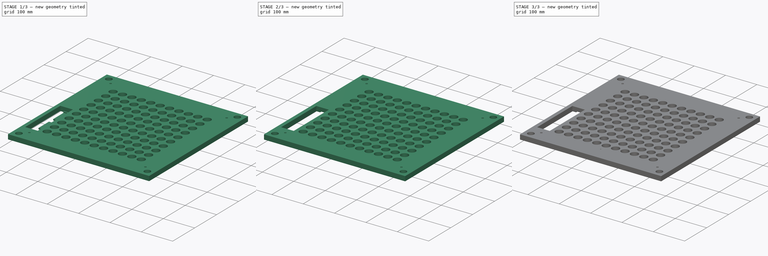
[diagram: build sequence overview — one tinted view per stage of 3, left to right]
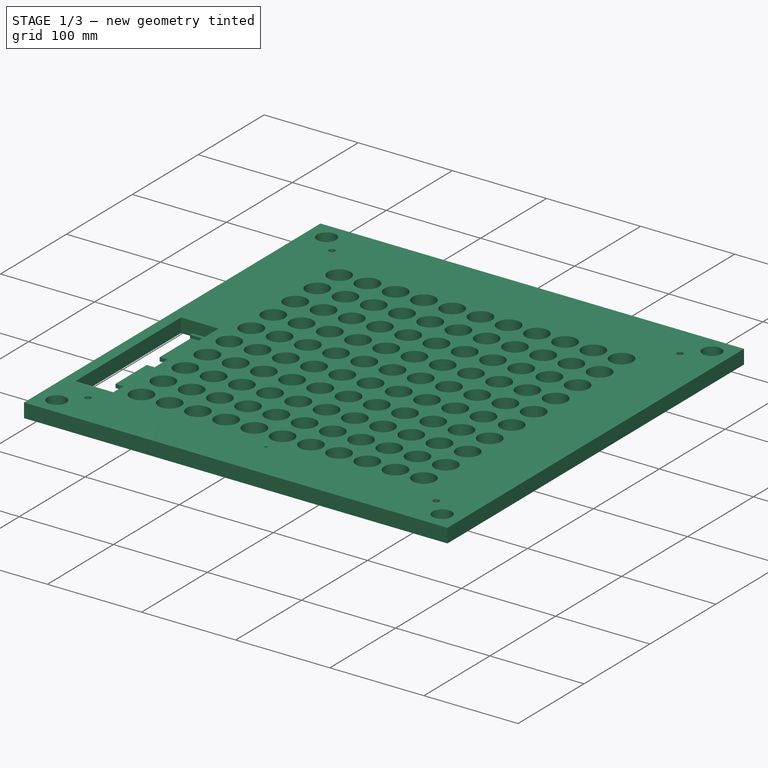
[diagram: stage 1 of 3 — iso view after this stage's code; geometry added in this stage tinted green]
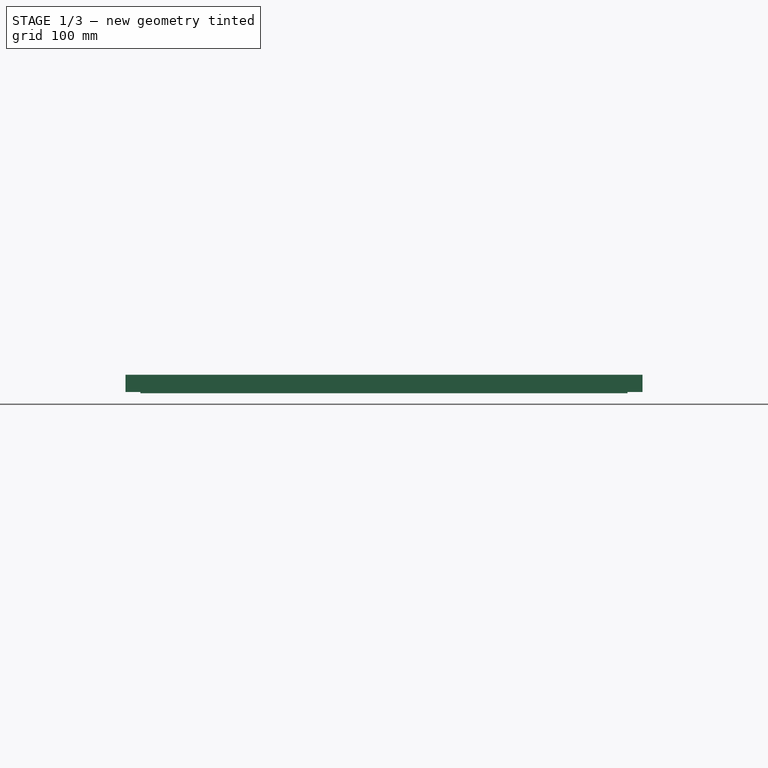
[diagram: stage 1 of 3 — front view after this stage's code; geometry added in this stage tinted green]
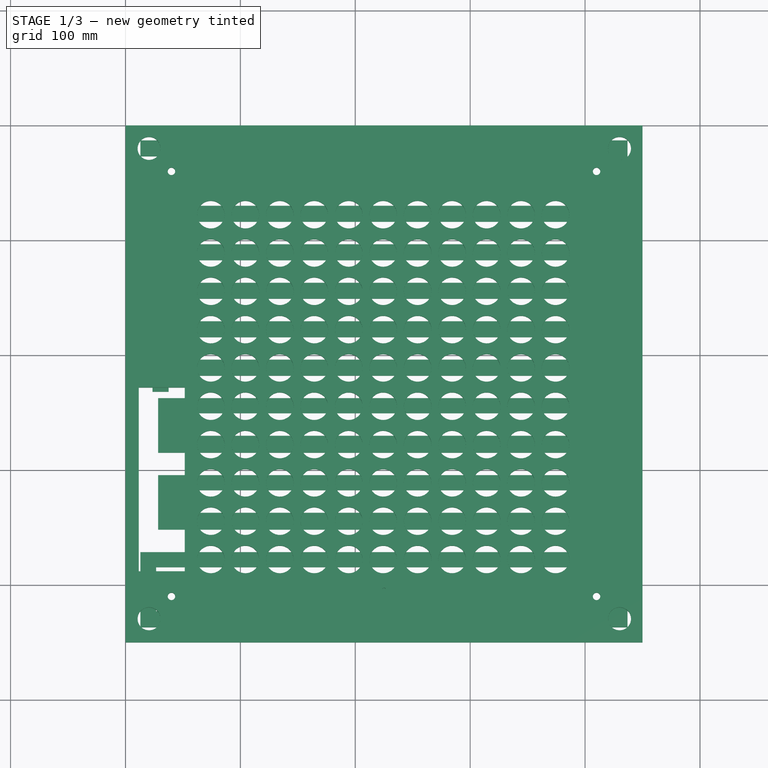
[diagram: stage 1 of 3 — top view after this stage's code; geometry added in this stage tinted green]
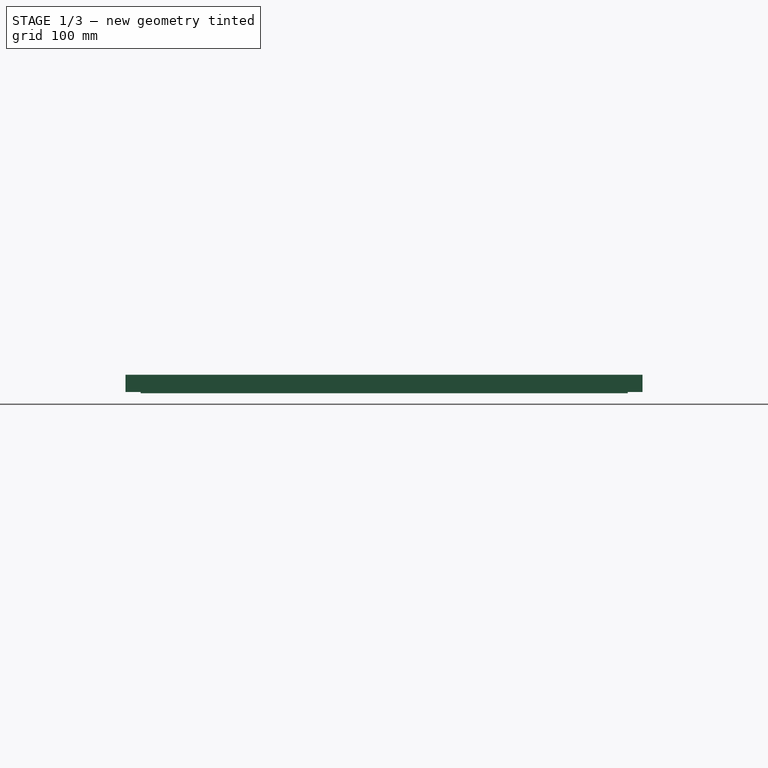
[diagram: stage 1 of 3 — right view after this stage's code; geometry added in this stage tinted green]
FCSTD DOCUMENT  (FreeCAD 0.18.4R)
Label: layout
License: All rights reserved
LicenseURL: http://en.wikipedia.org/wiki/All_rights_reserved
objects: Sketcher::SketchObject×8, Part::Extrusion×2, Part::Cut×2, App::DocumentObjectGroup×1, PartDesign::Pad×1, PartDesign::Body×1
note: 15 computed .brp shape members not serialized (recipe doc carries the construction recipe); baked Part::Feature solids carry a one-line shape summary decoded from their .brp

FEATURE [Sketcher::SketchObject] Sketch114  label="holes"
  sketch-geometry (114):
    g0: BSplineCurve PolesCount=7 KnotsCount=4 Degree=2 IsPeriodic=0
    g1: BSplineCurve PolesCount=7 KnotsCount=4 Degree=2 IsPeriodic=0
    g2: BSplineCurve PolesCount=7 KnotsCount=4 Degree=2 IsPeriodic=0
    g3: BSplineCurve PolesCount=7 KnotsCount=4 Degree=2 IsPeriodic=0
    g4: BSplineCurve PolesCount=7 KnotsCount=4 Degree=2 IsPeriodic=0
    g5: BSplineCurve PolesCount=7 KnotsCount=4 Degree=2 IsPeriodic=0
    g6: BSplineCurve PolesCount=7 KnotsCount=4 Degree=2 IsPeriodic=0
    g7: BSplineCurve PolesCount=7 KnotsCount=4 Degree=2 IsPeriodic=0
    g8: BSplineCurve PolesCount=7 KnotsCount=4 Degree=2 IsPeriodic=0
    g9: BSplineCurve PolesCount=7 KnotsCount=4 Degree=2 IsPeriodic=0
    g10: BSplineCurve PolesCount=7 KnotsCount=4 Degree=2 IsPeriodic=0
    g11: BSplineCurve PolesCount=7 KnotsCount=4 Degree=2 IsPeriodic=0
    g12: BSplineCurve PolesCount=7 KnotsCount=4 Degree=2 IsPeriodic=0
    g13: BSplineCurve PolesCount=7 KnotsCount=4 Degree=2 IsPeriodic=0
    g14: BSplineCurve PolesCount=7 KnotsCount=4 Degree=2 IsPeriodic=0
    g15: BSplineCurve PolesCount=7 KnotsCount=4 Degree=2 IsPeriodic=0
    g16: BSplineCurve PolesCount=7 KnotsCount=4 Degree=2 IsPeriodic=0
    g17: BSplineCurve PolesCount=7 KnotsCount=4 Degree=2 IsPeriodic=0
    g18: BSplineCurve PolesCount=7 KnotsCount=4 Degree=2 IsPeriodic=0
    g19: BSplineCurve PolesCount=7 KnotsCount=4 Degree=2 IsPeriodic=0
    g20: BSplineCurve PolesCount=7 KnotsCount=4 Degree=2 IsPeriodic=0
    g21: BSplineCurve PolesCount=7 KnotsCount=4 Degree=2 IsPeriodic=0
    g22: BSplineCurve PolesCount=7 KnotsCount=4 Degree=2 IsPeriodic=0
    g23: BSplineCurve PolesCount=7 KnotsCount=4 Degree=2 IsPeriodic=0
    g24: BSplineCurve PolesCount=7 KnotsCount=4 Degree=2 IsPeriodic=0
    g25: BSplineCurve PolesCount=7 KnotsCount=4 Degree=2 IsPeriodic=0
    g26: BSplineCurve PolesCount=7 KnotsCount=4 Degree=2 IsPeriodic=0
    g27: BSplineCurve PolesCount=7 KnotsCount=4 Degree=2 IsPeriodic=0
    g28: BSplineCurve PolesCount=7 KnotsCount=4 Degree=2 IsPeriodic=0
    g29: BSplineCurve PolesCount=7 KnotsCount=4 Degree=2 IsPeriodic=0
    g30: BSplineCurve PolesCount=7 KnotsCount=4 Degree=2 IsPeriodic=0
    g31: BSplineCurve PolesCount=7 KnotsCount=4 Degree=2 IsPeriodic=0
    g32: BSplineCurve PolesCount=7 KnotsCount=4 Degree=2 IsPeriodic=0
    g33: BSplineCurve PolesCount=7 KnotsCount=4 Degree=2 IsPeriodic=0
    g34: BSplineCurve PolesCount=7 KnotsCount=4 Degree=2 IsPeriodic=0
    g35: BSplineCurve PolesCount=7 KnotsCount=4 Degree=2 IsPeriodic=0
    g36: BSplineCurve PolesCount=7 KnotsCount=4 Degree=2 IsPeriodic=0
    g37: BSplineCurve PolesCount=7 KnotsCount=4 Degree=2 IsPeriodic=0
    g38: BSplineCurve PolesCount=7 KnotsCount=4 Degree=2 IsPeriodic=0
    g39: BSplineCurve PolesCount=7 KnotsCount=4 Degree=2 IsPeriodic=0
    g40: BSplineCurve PolesCount=7 KnotsCount=4 Degree=2 IsPeriodic=0
    g41: BSplineCurve PolesCount=7 KnotsCount=4 Degree=2 IsPeriodic=0
    g42: BSplineCurve PolesCount=7 KnotsCount=4 Degree=2 IsPeriodic=0
    g43: BSplineCurve PolesCount=7 KnotsCount=4 Degree=2 IsPeriodic=0
    g44: BSplineCurve PolesCount=7 KnotsCount=4 Degree=2 IsPeriodic=0
    g45: BSplineCurve PolesCount=7 KnotsCount=4 Degree=2 IsPeriodic=0
    g46: BSplineCurve PolesCount=7 KnotsCount=4 Degree=2 IsPeriodic=0
    g47: BSplineCurve PolesCount=7 KnotsCount=4 Degree=2 IsPeriodic=0
    g48: BSplineCurve PolesCount=7 KnotsCount=4 Degree=2 IsPeriodic=0
    g49: BSplineCurve PolesCount=7 KnotsCount=4 Degree=2 IsPeriodic=0
    g50: BSplineCurve PolesCount=7 KnotsCount=4 Degree=2 IsPeriodic=0
    g51: BSplineCurve PolesCount=7 KnotsCount=4 Degree=2 IsPeriodic=0
    g52: BSplineCurve PolesCount=7 KnotsCount=4 Degree=2 IsPeriodic=0
    g53: BSplineCurve PolesCount=7 KnotsCount=4 Degree=2 IsPeriodic=0
    g54: BSplineCurve PolesCount=7 KnotsCount=4 Degree=2 IsPeriodic=0
    g55: BSplineCurve PolesCount=7 KnotsCount=4 Degree=2 IsPeriodic=0
    g56: BSplineCurve PolesCount=7 KnotsCount=4 Degree=2 IsPeriodic=0
    g57: BSplineCurve PolesCount=7 KnotsCount=4 Degree=2 IsPeriodic=0
    g58: BSplineCurve PolesCount=7 KnotsCount=4 Degree=2 IsPeriodic=0
    g59: BSplineCurve PolesCount=7 KnotsCount=4 Degree=2 IsPeriodic=0
    g60: BSplineCurve PolesCount=7 KnotsCount=4 Degree=2 IsPeriodic=0
    g61: BSplineCurve PolesCount=7 KnotsCount=4 Degree=2 IsPeriodic=0
    g62: BSplineCurve PolesCount=7 KnotsCount=4 Degree=2 IsPeriodic=0
    g63: BSplineCurve PolesCount=7 KnotsCount=4 Degree=2 IsPeriodic=0
    g64: BSplineCurve PolesCount=7 KnotsCount=4 Degree=2 IsPeriodic=0
    g65: BSplineCurve PolesCount=7 KnotsCount=4 Degree=2 IsPeriodic=0
    g66: BSplineCurve PolesCount=7 KnotsCount=4 Degree=2 IsPeriodic=0
    g67: BSplineCurve PolesCount=7 KnotsCount=4 Degree=2 IsPeriodic=0
    g68: BSplineCurve PolesCount=7 KnotsCount=4 Degree=2 IsPeriodic=0
    g69: BSplineCurve PolesCount=7 KnotsCount=4 Degree=2 IsPeriodic=0
    g70: BSplineCurve PolesCount=7 KnotsCount=4 Degree=2 IsPeriodic=0
    g71: BSplineCurve PolesCount=7 KnotsCount=4 Degree=2 IsPeriodic=0
    g72: BSplineCurve PolesCount=7 KnotsCount=4 Degree=2 IsPeriodic=0
    g73: BSplineCurve PolesCount=7 KnotsCount=4 Degree=2 IsPeriodic=0
    g74: BSplineCurve PolesCount=7 KnotsCount=4 Degree=2 IsPeriodic=0
    g75: BSplineCurve PolesCount=7 KnotsCount=4 Degree=2 IsPeriodic=0
    g76: BSplineCurve PolesCount=7 KnotsCount=4 Degree=2 IsPeriodic=0
    g77: BSplineCurve PolesCount=7 KnotsCount=4 Degree=2 IsPeriodic=0
    g78: BSplineCurve PolesCount=7 KnotsCount=4 Degree=2 IsPeriodic=0
    g79: BSplineCurve PolesCount=7 KnotsCount=4 Degree=2 IsPeriodic=0
    g80: BSplineCurve PolesCount=7 KnotsCount=4 Degree=2 IsPeriodic=0
    g81: BSplineCurve PolesCount=7 KnotsCount=4 Degree=2 IsPeriodic=0
    g82: BSplineCurve PolesCount=7 KnotsCount=4 Degree=2 IsPeriodic=0
    g83: BSplineCurve PolesCount=7 KnotsCount=4 Degree=2 IsPeriodic=0
    g84: BSplineCurve PolesCount=7 KnotsCount=4 Degree=2 IsPeriodic=0
    g85: BSplineCurve PolesCount=7 KnotsCount=4 Degree=2 IsPeriodic=0
    g86: BSplineCurve PolesCount=7 KnotsCount=4 Degree=2 IsPeriodic=0
    g87: BSplineCurve PolesCount=7 KnotsCount=4 Degree=2 IsPeriodic=0
    g88: BSplineCurve PolesCount=7 KnotsCount=4 Degree=2 IsPeriodic=0
    g89: BSplineCurve PolesCount=7 KnotsCount=4 Degree=2 IsPeriodic=0
    g90: BSplineCurve PolesCount=7 KnotsCount=4 Degree=2 IsPeriodic=0
    g91: BSplineCurve PolesCount=7 KnotsCount=4 Degree=2 IsPeriodic=0
    g92: BSplineCurve PolesCount=7 KnotsCount=4 Degree=2 IsPeriodic=0
    g93: BSplineCurve PolesCount=7 KnotsCount=4 Degree=2 IsPeriodic=0
    g94: BSplineCurve PolesCount=7 KnotsCount=4 Degree=2 IsPeriodic=0
    g95: BSplineCurve PolesCount=7 KnotsCount=4 Degree=2 IsPeriodic=0
    g96: BSplineCurve PolesCount=7 KnotsCount=4 Degree=2 IsPeriodic=0
    g97: BSplineCurve PolesCount=7 KnotsCount=4 Degree=2 IsPeriodic=0
    g98: BSplineCurve PolesCount=7 KnotsCount=4 Degree=2 IsPeriodic=0
    g99: BSplineCurve PolesCount=7 KnotsCount=4 Degree=2 IsPeriodic=0
    g100: BSplineCurve PolesCount=7 KnotsCount=4 Degree=2 IsPeriodic=0
    g101: BSplineCurve PolesCount=7 KnotsCount=4 Degree=2 IsPeriodic=0
    g102: BSplineCurve PolesCount=7 KnotsCount=4 Degree=2 IsPeriodic=0
    g103: BSplineCurve PolesCount=7 KnotsCount=4 Degree=2 IsPeriodic=0
    g104: BSplineCurve PolesCount=7 KnotsCount=4 Degree=2 IsPeriodic=0
    g105: BSplineCurve PolesCount=7 KnotsCount=4 Degree=2 IsPeriodic=0
    g106: BSplineCurve PolesCount=7 KnotsCount=4 Degree=2 IsPeriodic=0
    g107: BSplineCurve PolesCount=7 KnotsCount=4 Degree=2 IsPeriodic=0
    g108: BSplineCurve PolesCount=7 KnotsCount=4 Degree=2 IsPeriodic=0
    g109: BSplineCurve PolesCount=7 KnotsCount=4 Degree=2 IsPeriodic=0
    g110: BSplineCurve PolesCount=7 KnotsCount=4 Degree=2 IsPeriodic=0
    g111: BSplineCurve PolesCount=7 KnotsCount=4 Degree=2 IsPeriodic=0
    g112: BSplineCurve PolesCount=7 KnotsCount=4 Degree=2 IsPeriodic=0
    g113: BSplineCurve PolesCount=7 KnotsCount=4 Degree=2 IsPeriodic=0
FEATURE [Sketcher::SketchObject] Sketch  label="plate"
  MapMode = 2
  Support = -> [Sketch114]
  sketch-geometry (4):
    g0: LineSegment StartX=0 StartY=0 StartZ=0 EndX=450 EndY=0 EndZ=0
    g1: LineSegment StartX=450 StartY=0 StartZ=0 EndX=450 EndY=-450 EndZ=0
    g2: LineSegment StartX=450 StartY=-450 StartZ=0 EndX=0 EndY=-450 EndZ=0
    g3: LineSegment StartX=0 StartY=-450 StartZ=0 EndX=0 EndY=0 EndZ=0
  constraints (11):
    c: Coincident(g0,g1)
    c: Coincident(g1,g2)
    c: Coincident(g2,g3)
    c: Coincident(g3,g0)
    c: Horizontal(g0)
    c: Horizontal(g2)
    c: Vertical(g1)
    c: Vertical(g3)
    c: DistanceX(g0,g0) = 450
    c: DistanceY(g1,g1) = 450
    c: Coincident(g0,g-1)
FEATURE [Sketcher::SketchObject] Sketch116  label="raspberrypi"
  sketch-geometry (4):
    g0: LineSegment StartX=11.5345 StartY=-228.121 StartZ=0 EndX=51.5345 EndY=-228.121 EndZ=0
    g1: LineSegment StartX=51.5345 StartY=-228.121 StartZ=0 EndX=51.5345 EndY=-388.121 EndZ=0
    g2: LineSegment StartX=51.5345 StartY=-388.121 StartZ=0 EndX=11.5345 EndY=-388.121 EndZ=0
    g3: LineSegment StartX=11.5345 StartY=-388.121 StartZ=0 EndX=11.5345 EndY=-228.121 EndZ=0
  constraints (10):
    c: Coincident(g0,g1)
    c: Coincident(g1,g2)
    c: Coincident(g2,g3)
    c: Coincident(g3,g0)
    c: Horizontal(g0)
    c: Horizontal(g2)
    c: Vertical(g1)
    c: Vertical(g3)
    c: DistanceY(g3,g3) = 160
    c: DistanceX(g0,g0) = 40
FEATURE [Sketcher::SketchObject] Sketch117  label="holes/plate/raspberrypi"
  sketch-geometry (127):
    g0: BSplineCurve PolesCount=7 KnotsCount=4 Degree=2 IsPeriodic=0
    g1: BSplineCurve PolesCount=7 KnotsCount=4 Degree=2 IsPeriodic=0
    g2: BSplineCurve PolesCount=7 KnotsCount=4 Degree=2 IsPeriodic=0
    g3: BSplineCurve PolesCount=7 KnotsCount=4 Degree=2 IsPeriodic=0
    g4: BSplineCurve PolesCount=7 KnotsCount=4 Degree=2 IsPeriodic=0
    g5: BSplineCurve PolesCount=7 KnotsCount=4 Degree=2 IsPeriodic=0
    g6: BSplineCurve PolesCount=7 KnotsCount=4 Degree=2 IsPeriodic=0
    g7: BSplineCurve PolesCount=7 KnotsCount=4 Degree=2 IsPeriodic=0
    g8: BSplineCurve PolesCount=7 KnotsCount=4 Degree=2 IsPeriodic=0
    g9: BSplineCurve PolesCount=7 KnotsCount=4 Degree=2 IsPeriodic=0
    g10: BSplineCurve PolesCount=7 KnotsCount=4 Degree=2 IsPeriodic=0
    g11: BSplineCurve PolesCount=7 KnotsCount=4 Degree=2 IsPeriodic=0
    g12: BSplineCurve PolesCount=7 KnotsCount=4 Degree=2 IsPeriodic=0
    g13: BSplineCurve PolesCount=7 KnotsCount=4 Degree=2 IsPeriodic=0
    g14: BSplineCurve PolesCount=7 KnotsCount=4 Degree=2 IsPeriodic=0
    g15: BSplineCurve PolesCount=7 KnotsCount=4 Degree=2 IsPeriodic=0
    g16: BSplineCurve PolesCount=7 KnotsCount=4 Degree=2 IsPeriodic=0
    g17: BSplineCurve PolesCount=7 KnotsCount=4 Degree=2 IsPeriodic=0
    g18: BSplineCurve PolesCount=7 KnotsCount=4 Degree=2 IsPeriodic=0
    g19: BSplineCurve PolesCount=7 KnotsCount=4 Degree=2 IsPeriodic=0
    g20: BSplineCurve PolesCount=7 KnotsCount=4 Degree=2 IsPeriodic=0
    g21: BSplineCurve PolesCount=7 KnotsCount=4 Degree=2 IsPeriodic=0
    g22: BSplineCurve PolesCount=7 KnotsCount=4 Degree=2 IsPeriodic=0
    g23: BSplineCurve PolesCount=7 KnotsCount=4 Degree=2 IsPeriodic=0
    g24: BSplineCurve PolesCount=7 KnotsCount=4 Degree=2 IsPeriodic=0
    g25: BSplineCurve PolesCount=7 KnotsCount=4 Degree=2 IsPeriodic=0
    g26: BSplineCurve PolesCount=7 KnotsCount=4 Degree=2 IsPeriodic=0
    g27: BSplineCurve PolesCount=7 KnotsCount=4 Degree=2 IsPeriodic=0
    g28: BSplineCurve PolesCount=7 KnotsCount=4 Degree=2 IsPeriodic=0
    g29: BSplineCurve PolesCount=7 KnotsCount=4 Degree=2 IsPeriodic=0
    g30: BSplineCurve PolesCount=7 KnotsCount=4 Degree=2 IsPeriodic=0
    g31: BSplineCurve PolesCount=7 KnotsCount=4 Degree=2 IsPeriodic=0
    g32: BSplineCurve PolesCount=7 KnotsCount=4 Degree=2 IsPeriodic=0
    g33: BSplineCurve PolesCount=7 KnotsCount=4 Degree=2 IsPeriodic=0
    g34: BSplineCurve PolesCount=7 KnotsCount=4 Degree=2 IsPeriodic=0
    g35: BSplineCurve PolesCount=7 KnotsCount=4 Degree=2 IsPeriodic=0
    g36: BSplineCurve PolesCount=7 KnotsCount=4 Degree=2 IsPeriodic=0
    g37: BSplineCurve PolesCount=7 KnotsCount=4 Degree=2 IsPeriodic=0
    g38: BSplineCurve PolesCount=7 KnotsCount=4 Degree=2 IsPeriodic=0
    g39: BSplineCurve PolesCount=7 KnotsCount=4 Degree=2 IsPeriodic=0
    g40: BSplineCurve PolesCount=7 KnotsCount=4 Degree=2 IsPeriodic=0
    g41: BSplineCurve PolesCount=7 KnotsCount=4 Degree=2 IsPeriodic=0
    g42: BSplineCurve PolesCount=7 KnotsCount=4 Degree=2 IsPeriodic=0
    g43: BSplineCurve PolesCount=7 KnotsCount=4 Degree=2 IsPeriodic=0
    g44: BSplineCurve PolesCount=7 KnotsCount=4 Degree=2 IsPeriodic=0
    g45: BSplineCurve PolesCount=7 KnotsCount=4 Degree=2 IsPeriodic=0
    g46: BSplineCurve PolesCount=7 KnotsCount=4 Degree=2 IsPeriodic=0
    g47: BSplineCurve PolesCount=7 KnotsCount=4 Degree=2 IsPeriodic=0
    g48: BSplineCurve PolesCount=7 KnotsCount=4 Degree=2 IsPeriodic=0
    g49: BSplineCurve PolesCount=7 KnotsCount=4 Degree=2 IsPeriodic=0
    g50: BSplineCurve PolesCount=7 KnotsCount=4 Degree=2 IsPeriodic=0
    g51: BSplineCurve PolesCount=7 KnotsCount=4 Degree=2 IsPeriodic=0
    g52: BSplineCurve PolesCount=7 KnotsCount=4 Degree=2 IsPeriodic=0
    g53: BSplineCurve PolesCount=7 KnotsCount=4 Degree=2 IsPeriodic=0
    g54: BSplineCurve PolesCount=7 KnotsCount=4 Degree=2 IsPeriodic=0
    g55: BSplineCurve PolesCount=7 KnotsCount=4 Degree=2 IsPeriodic=0
    g56: BSplineCurve PolesCount=7 KnotsCount=4 Degree=2 IsPeriodic=0
    g57: BSplineCurve PolesCount=7 KnotsCount=4 Degree=2 IsPeriodic=0
    g58: BSplineCurve PolesCount=7 KnotsCount=4 Degree=2 IsPeriodic=0
    g59: BSplineCurve PolesCount=7 KnotsCount=4 Degree=2 IsPeriodic=0
    g60: BSplineCurve PolesCount=7 KnotsCount=4 Degree=2 IsPeriodic=0
    g61: BSplineCurve PolesCount=7 KnotsCount=4 Degree=2 IsPeriodic=0
    g62: BSplineCurve PolesCount=7 KnotsCount=4 Degree=2 IsPeriodic=0
    g63: BSplineCurve PolesCount=7 KnotsCount=4 Degree=2 IsPeriodic=0
    g64: BSplineCurve PolesCount=7 KnotsCount=4 Degree=2 IsPeriodic=0
    g65: BSplineCurve PolesCount=7 KnotsCount=4 Degree=2 IsPeriodic=0
    g66: BSplineCurve PolesCount=7 KnotsCount=4 Degree=2 IsPeriodic=0
    g67: BSplineCurve PolesCount=7 KnotsCount=4 Degree=2 IsPeriodic=0
    g68: BSplineCurve PolesCount=7 KnotsCount=4 Degree=2 IsPeriodic=0
    g69: BSplineCurve PolesCount=7 KnotsCount=4 Degree=2 IsPeriodic=0
    g70: BSplineCurve PolesCount=7 KnotsCount=4 Degree=2 IsPeriodic=0
    g71: BSplineCurve PolesCount=7 KnotsCount=4 Degree=2 IsPeriodic=0
    g72: BSplineCurve PolesCount=7 KnotsCount=4 Degree=2 IsPeriodic=0
    g73: BSplineCurve PolesCount=7 KnotsCount=4 Degree=2 IsPeriodic=0
    g74: BSplineCurve PolesCount=7 KnotsCount=4 Degree=2 IsPeriodic=0
    g75: BSplineCurve PolesCount=7 KnotsCount=4 Degree=2 IsPeriodic=0
    g76: BSplineCurve PolesCount=7 KnotsCount=4 Degree=2 IsPeriodic=0
    g77: BSplineCurve PolesCount=7 KnotsCount=4 Degree=2 IsPeriodic=0
    g78: BSplineCurve PolesCount=7 KnotsCount=4 Degree=2 IsPeriodic=0
    g79: BSplineCurve PolesCount=7 KnotsCount=4 Degree=2 IsPeriodic=0
    g80: BSplineCurve PolesCount=7 KnotsCount=4 Degree=2 IsPeriodic=0
    g81: BSplineCurve PolesCount=7 KnotsCount=4 Degree=2 IsPeriodic=0
    g82: BSplineCurve PolesCount=7 KnotsCount=4 Degree=2 IsPeriodic=0
    g83: BSplineCurve PolesCount=7 KnotsCount=4 Degree=2 IsPeriodic=0
    g84: BSplineCurve PolesCount=7 KnotsCount=4 Degree=2 IsPeriodic=0
    g85: BSplineCurve PolesCount=7 KnotsCount=4 Degree=2 IsPeriodic=0
    g86: BSplineCurve PolesCount=7 KnotsCount=4 Degree=2 IsPeriodic=0
    g87: BSplineCurve PolesCount=7 KnotsCount=4 Degree=2 IsPeriodic=0
    g88: BSplineCurve PolesCount=7 KnotsCount=4 Degree=2 IsPeriodic=0
    g89: BSplineCurve PolesCount=7 KnotsCount=4 Degree=2 IsPeriodic=0
    g90: BSplineCurve PolesCount=7 KnotsCount=4 Degree=2 IsPeriodic=0
    g91: BSplineCurve PolesCount=7 KnotsCount=4 Degree=2 IsPeriodic=0
    g92: BSplineCurve PolesCount=7 KnotsCount=4 Degree=2 IsPeriodic=0
    g93: BSplineCurve PolesCount=7 KnotsCount=4 Degree=2 IsPeriodic=0
    g94: BSplineCurve PolesCount=7 KnotsCount=4 Degree=2 IsPeriodic=0
    g95: BSplineCurve PolesCount=7 KnotsCount=4 Degree=2 IsPeriodic=0
    g96: BSplineCurve PolesCount=7 KnotsCount=4 Degree=2 IsPeriodic=0
    g97: BSplineCurve PolesCount=7 KnotsCount=4 Degree=2 IsPeriodic=0
    g98: BSplineCurve PolesCount=7 KnotsCount=4 Degree=2 IsPeriodic=0
    g99: BSplineCurve PolesCount=7 KnotsCount=4 Degree=2 IsPeriodic=0
    g100: BSplineCurve PolesCount=7 KnotsCount=4 Degree=2 IsPeriodic=0
    g101: BSplineCurve PolesCount=7 KnotsCount=4 Degree=2 IsPeriodic=0
    g102: BSplineCurve PolesCount=7 KnotsCount=4 Degree=2 IsPeriodic=0
    g103: BSplineCurve PolesCount=7 KnotsCount=4 Degree=2 IsPeriodic=0
    g104: BSplineCurve PolesCount=7 KnotsCount=4 Degree=2 IsPeriodic=0
    g105: BSplineCurve PolesCount=7 KnotsCount=4 Degree=2 IsPeriodic=0
    g106: BSplineCurve PolesCount=7 KnotsCount=4 Degree=2 IsPeriodic=0
    g107: BSplineCurve PolesCount=7 KnotsCount=4 Degree=2 IsPeriodic=0
    g108: BSplineCurve PolesCount=7 KnotsCount=4 Degree=2 IsPeriodic=0
    g109: BSplineCurve PolesCount=7 KnotsCount=4 Degree=2 IsPeriodic=0
    g110: BSplineCurve PolesCount=7 KnotsCount=4 Degree=2 IsPeriodic=0
    g111: BSplineCurve PolesCount=7 KnotsCount=4 Degree=2 IsPeriodic=0
    g112: BSplineCurve PolesCount=7 KnotsCount=4 Degree=2 IsPeriodic=0
    g113: BSplineCurve PolesCount=7 KnotsCount=4 Degree=2 IsPeriodic=0
    g114: LineSegment StartX=0 StartY=0 StartZ=0 EndX=450 EndY=0 EndZ=0
    g115: LineSegment StartX=450 StartY=0 StartZ=0 EndX=450 EndY=-450 EndZ=0
    g116: LineSegment StartX=450 StartY=-450 StartZ=0 EndX=0 EndY=-450 EndZ=0
    g117: LineSegment StartX=0 StartY=-450 StartZ=0 EndX=0 EndY=0 EndZ=0
    g118: LineSegment StartX=11.5345 StartY=-228.121 StartZ=0 EndX=51.5345 EndY=-228.121 EndZ=0
    g119: LineSegment StartX=51.5345 StartY=-228.121 StartZ=0 EndX=51.5345 EndY=-388.121 EndZ=0
    g120: LineSegment StartX=51.5345 StartY=-388.121 StartZ=0 EndX=11.5345 EndY=-388.121 EndZ=0
    g121: LineSegment StartX=11.5345 StartY=-388.121 StartZ=0 EndX=11.5345 EndY=-228.121 EndZ=0
    g122: Circle CenterX=40 CenterY=-410 CenterZ=0 NormalX=0 NormalY=0 NormalZ=1 AngleXU=0 Radius=3.25
    g123: Circle CenterX=410 CenterY=-410 CenterZ=0 NormalX=0 NormalY=0 NormalZ=1 AngleXU=0 Radius=3.25
    g124: Circle CenterX=410 CenterY=-40 CenterZ=0 NormalX=0 NormalY=0 NormalZ=1 AngleXU=0 Radius=3.25
    g125: Circle CenterX=40 CenterY=-40 CenterZ=0 NormalX=0 NormalY=0 NormalZ=1 AngleXU=0 Radius=3.25
    g126: Circle CenterX=225 CenterY=-404 CenterZ=0 NormalX=0 NormalY=0 NormalZ=1 AngleXU=0 Radius=1.5
  constraints (36):
    c: Coincident(g114,g115)
    c: Coincident(g115,g116)
    c: Coincident(g116,g117)
    c: Coincident(g117,g114)
    c: Horizontal(g114)
    c: Horizontal(g116)
    c: Vertical(g115)
    c: Vertical(g117)
    c: DistanceX(g114,g114) = 450
    c: DistanceY(g115,g115) = 450
    c: Coincident(g114,g-1)
    c: Coincident(g118,g119)
    c: Coincident(g119,g120)
    c: Coincident(g120,g121)
    c: Coincident(g121,g118)
    c: Horizontal(g118)
    c: Horizontal(g120)
    c: Vertical(g119)
    c: Vertical(g121)
    c: DistanceY(g121,g121) = 160
    c: DistanceX(g118,g118) = 40
    c: DistanceX(g116,g122) = 40
    c: DistanceY(g116,g122) = 40
    c: Radius(g122) = 3.25
    c: DistanceX(g123,g115) = 40
    c: DistanceY(g115,g123) = 40
    c: Radius(g123) = 3.25
    c: Radius(g124) = 3.25
    c: DistanceX(g124,g114) = 40
    c: DistanceY(g124,g114) = 40
    c: DistanceX(g114,g125) = 40
    c: DistanceY(g125,g114) = 40
    c: Radius(g125) = 3.25
    c: DistanceX(g116,g126) = 225
    c: Radius(g126) = 1.5
    c: DistanceY(g116,g126) = 46
FEATURE [Sketcher::SketchObject] Sketch120  label="leds"
  MapMode = 5
  Placement = pos=(0,0,2) rot=(0,0,1;0rad)
  sketch-geometry (69):
    g0: LineSegment StartX=37.5531 StartY=-83.7652 StartZ=0 EndX=393.746 EndY=-83.7652 EndZ=0
    g1: LineSegment StartX=23.5531 StartY=-231.671 StartZ=0 EndX=23.5531 EndY=-69.7652 EndZ=0
    g2: LineSegment StartX=23.5531 StartY=-69.7652 StartZ=0 EndX=422.91 EndY=-69.7652 EndZ=0
    g3: LineSegment StartX=422.91 StartY=-117.265 StartZ=0 EndX=53.3267 EndY=-117.265 EndZ=0
    g4: LineSegment StartX=393.746 StartY=-83.7652 StartZ=0 EndX=393.746 EndY=-103.265 EndZ=0
    g5: LineSegment StartX=393.746 StartY=-103.265 StartZ=0 EndX=37.5531 EndY=-103.265 EndZ=0
    g6: LineSegment StartX=37.5531 StartY=-150.765 StartZ=0 EndX=393.746 EndY=-150.765 EndZ=0
    g7: LineSegment StartX=393.746 StartY=-150.765 StartZ=0 EndX=393.746 EndY=-170.265 EndZ=0
    g8: LineSegment StartX=393.746 StartY=-170.265 StartZ=0 EndX=37.5531 EndY=-170.265 EndZ=0
    g9: LineSegment StartX=53.3267 StartY=-117.265 StartZ=0 EndX=53.3267 EndY=-136.765 EndZ=0
    g10: LineSegment StartX=53.3267 StartY=-136.765 StartZ=0 EndX=422.91 EndY=-136.765 EndZ=0
    g11: LineSegment StartX=422.91 StartY=-184.265 StartZ=0 EndX=53.3267 EndY=-184.265 EndZ=0
    g12: LineSegment StartX=53.3267 StartY=-184.265 StartZ=0 EndX=53.3267 EndY=-203.765 EndZ=0
    g13: LineSegment StartX=53.3267 StartY=-203.765 StartZ=0 EndX=422.91 EndY=-203.765 EndZ=0
    g14: LineSegment StartX=422.91 StartY=-250.467 StartZ=0 EndX=53.3267 EndY=-250.467 EndZ=0
    g15: LineSegment StartX=37.5531 StartY=-217.765 StartZ=0 EndX=393.746 EndY=-217.765 EndZ=0
    g16: LineSegment StartX=393.746 StartY=-217.765 StartZ=0 EndX=393.746 EndY=-237.265 EndZ=0
    g17: LineSegment StartX=393.746 StartY=-237.265 StartZ=0 EndX=28.4564 EndY=-237.265 EndZ=0
    g18: LineSegment StartX=53.3267 StartY=-269.967 StartZ=0 EndX=422.91 EndY=-269.967 EndZ=0
    g19: LineSegment StartX=422.91 StartY=-317.467 StartZ=0 EndX=53.3267 EndY=-317.467 EndZ=0
    g20: LineSegment StartX=28.4564 StartY=-284.765 StartZ=0 EndX=393.746 EndY=-284.765 EndZ=0
    g21: LineSegment StartX=393.746 StartY=-284.765 StartZ=0 EndX=393.746 EndY=-304.265 EndZ=0
    g22: LineSegment StartX=393.746 StartY=-304.265 StartZ=0 EndX=28.4564 EndY=-304.265 EndZ=0
    g23: LineSegment StartX=53.3267 StartY=-336.967 StartZ=0 EndX=422.91 EndY=-336.967 EndZ=0
    g24: LineSegment StartX=28.4564 StartY=-351.765 StartZ=0 EndX=393.746 EndY=-351.765 EndZ=0
    g25: LineSegment StartX=393.746 StartY=-351.765 StartZ=0 EndX=393.746 EndY=-371.265 EndZ=0
    g26: LineSegment StartX=436.91 StartY=-436.815 StartZ=0 EndX=12.9101 EndY=-436.815 EndZ=0
    g27: LineSegment StartX=436.91 StartY=-12.8148 StartZ=0 EndX=436.91 EndY=-436.815 EndZ=0
    g28: LineSegment StartX=436.91 StartY=-12.8148 StartZ=0 EndX=12.9101 EndY=-12.8148 EndZ=0
    g29: LineSegment StartX=12.9101 StartY=-26.8148 StartZ=0 EndX=422.91 EndY=-26.8148 EndZ=0
    g30: LineSegment StartX=12.9101 StartY=-371.265 StartZ=0 EndX=393.746 EndY=-371.265 EndZ=0
    g31: LineSegment StartX=422.709 StartY=-384.467 StartZ=0 EndX=26.7094 EndY=-384.467 EndZ=0
    g32: LineSegment StartX=26.7094 StartY=-384.467 StartZ=0 EndX=26.7094 EndY=-422.617 EndZ=0
    g33: LineSegment StartX=12.9101 StartY=-371.265 StartZ=0 EndX=12.9101 EndY=-436.815 EndZ=0
    g34: LineSegment StartX=12.9101 StartY=-12.8148 StartZ=0 EndX=12.9101 EndY=-26.8148 EndZ=0
    g35: LineSegment StartX=23.5531 StartY=-231.671 StartZ=0 EndX=37.5531 EndY=-231.671 EndZ=0
    g36: LineSegment StartX=28.4564 StartY=-304.265 StartZ=0 EndX=28.4564 EndY=-351.765 EndZ=0
    g37: LineSegment StartX=28.4564 StartY=-284.765 StartZ=0 EndX=28.4564 EndY=-237.265 EndZ=0
    g38: LineSegment StartX=53.3267 StartY=-317.467 StartZ=0 EndX=53.3267 EndY=-336.967 EndZ=0
    g39: LineSegment StartX=53.3267 StartY=-250.467 StartZ=0 EndX=53.3267 EndY=-269.967 EndZ=0
    g40: LineSegment StartX=422.709 StartY=-384.467 StartZ=0 EndX=422.709 EndY=-423.018 EndZ=0
    g41: LineSegment StartX=422.91 StartY=-317.467 StartZ=0 EndX=422.91 EndY=-336.967 EndZ=0
    g42: LineSegment StartX=422.91 StartY=-250.467 StartZ=0 EndX=422.91 EndY=-269.967 EndZ=0
    g43: LineSegment StartX=422.91 StartY=-184.265 StartZ=0 EndX=422.91 EndY=-203.765 EndZ=0
    g44: LineSegment StartX=422.91 StartY=-117.265 StartZ=0 EndX=422.91 EndY=-136.765 EndZ=0
    g45: LineSegment StartX=422.91 StartY=-26.8148 StartZ=0 EndX=422.91 EndY=-69.7652 EndZ=0
    g46: LineSegment StartX=37.5531 StartY=-83.7652 StartZ=0 EndX=37.5531 EndY=-103.265 EndZ=0
    g47: LineSegment StartX=37.5531 StartY=-150.765 StartZ=0 EndX=37.5531 EndY=-170.265 EndZ=0
    g48: LineSegment StartX=37.5531 StartY=-217.765 StartZ=0 EndX=37.5531 EndY=-231.671 EndZ=0
    g49: LineSegment [constr] StartX=422.91 StartY=-203.765 StartZ=0 EndX=422.91 EndY=-250.467 EndZ=0
    g50: LineSegment [constr] StartX=393.746 StartY=-170.265 StartZ=0 EndX=393.746 EndY=-217.765 EndZ=0
    g51: LineSegment [constr] StartX=393.746 StartY=-237.265 StartZ=0 EndX=393.746 EndY=-284.765 EndZ=0
    g52: LineSegment [constr] StartX=393.746 StartY=-103.265 StartZ=0 EndX=393.746 EndY=-150.765 EndZ=0
    g53: LineSegment [constr] StartX=53.3267 StartY=-136.765 StartZ=0 EndX=53.3267 EndY=-184.265 EndZ=0
    g54: LineSegment [constr] StartX=53.3267 StartY=-203.765 StartZ=0 EndX=53.3267 EndY=-250.467 EndZ=0
    g55: LineSegment [constr] StartX=53.3267 StartY=-269.967 StartZ=0 EndX=53.3267 EndY=-317.467 EndZ=0
    g56: LineSegment [constr] StartX=28.4564 StartY=-284.765 StartZ=0 EndX=28.4564 EndY=-304.265 EndZ=0
    g57: LineSegment [constr] StartX=37.5531 StartY=-170.265 StartZ=0 EndX=37.5531 EndY=-217.765 EndZ=0
    g58: LineSegment [constr] StartX=37.5531 StartY=-103.265 StartZ=0 EndX=37.5531 EndY=-150.765 EndZ=0
    g59: LineSegment [constr] StartX=422.91 StartY=-269.967 StartZ=0 EndX=422.91 EndY=-317.467 EndZ=0
    g60: LineSegment [constr] StartX=422.91 StartY=-136.765 StartZ=0 EndX=422.91 EndY=-184.265 EndZ=0
    g61: LineSegment [constr] StartX=422.91 StartY=-69.7652 StartZ=0 EndX=422.91 EndY=-117.265 EndZ=0
    g62: LineSegment [constr] StartX=393.746 StartY=-304.265 StartZ=0 EndX=393.746 EndY=-351.765 EndZ=0
    g63: LineSegment StartX=217 StartY=-393.857 StartZ=0 EndX=233 EndY=-393.857 EndZ=0
    g64: LineSegment StartX=233 StartY=-393.857 StartZ=0 EndX=233 EndY=-423.018 EndZ=0
    g65: LineSegment StartX=233 StartY=-423.018 StartZ=0 EndX=217 EndY=-423.018 EndZ=0
    g66: LineSegment StartX=217 StartY=-423.018 StartZ=0 EndX=217 EndY=-393.857 EndZ=0
    g67: LineSegment StartX=233 StartY=-423.018 StartZ=0 EndX=422.709 EndY=-423.018 EndZ=0
    g68: LineSegment StartX=26.7094 StartY=-422.617 StartZ=0 EndX=217 EndY=-423.018 EndZ=0
  constraints (181):
    c: Coincident(g1,g2)
    c: Coincident(g4,g5)
    c: Coincident(g7,g8)
    c: Coincident(g9,g10)
    c: Coincident(g11,g12)
    c: Coincident(g12,g13)
    c: Coincident(g15,g16)
    c: Coincident(g16,g17)
    c: Coincident(g20,g21)
    c: Coincident(g21,g22)
    c: Coincident(g24,g25)
    c: Vertical(g1)
    c: Vertical(g9)
    c: Vertical(g12)
    c: Vertical(g4)
    c: Vertical(g7)
    c: Vertical(g16)
    c: Vertical(g21)
    c: Vertical(g25)
    c: Horizontal(g26)
    c: Vertical(g27)
    c: Horizontal(g29)
    c: Horizontal(g28)
    c: Horizontal(g14)
    c: Horizontal(g17)
    c: Horizontal(g15)
    c: Horizontal(g13)
    c: Horizontal(g11)
    c: Horizontal(g8)
    c: Horizontal(g6)
    c: Horizontal(g10)
    c: Horizontal(g3)
    c: Horizontal(g5)
    c: Horizontal(g0)
    c: Horizontal(g2)
    c: Horizontal(g18)
    c: Horizontal(g20)
    c: Horizontal(g24)
    c: Horizontal(g23)
    c: Horizontal(g22)
    c: Horizontal(g19)
    c: Coincident(g33,g26)
    c: Vertical(g33)
    c: Vertical(g32)
    c: Coincident(g26,g27)
    c: Coincident(g28,g27)
    c: Coincident(g29,g34)
    c: Coincident(g28,g34)
    c: Vertical(g34)
    c: Coincident(g32,g31)
    c: Coincident(g30,g33)
    c: Coincident(g7,g6)
    c: Coincident(g0,g4)
    c: Coincident(g3,g9)
    c: Coincident(g35,g1)
    c: Horizontal(g35)
    c: Coincident(g17,g37)
    c: Coincident(g20,g37)
    c: Coincident(g22,g36)
    c: Coincident(g24,g36)
    c: Coincident(g39,g14)
    c: Coincident(g18,g39)
    c: Coincident(g23,g38)
    c: Vertical(g39)
    c: Vertical(g37)
    c: Vertical(g36)
    c: Vertical(g38)
    c: Horizontal(g31)
    c: Coincident(g30,g25)
    c: Horizontal(g30)
    c: DistanceY(g31,g23) = 47.5
    c: DistanceY(g19,g18) = 47.5
    c: DistanceY(g36,g36) = 47.5
    c: DistanceY(g37,g37) = 47.5
    c: Coincident(g19,g38)
    c: DistanceY(g25,g25) = 19.5
    c: DistanceY(g38,g38) = 19.5
    c: DistanceY(g21,g21) = 19.5
    c: DistanceY(g39,g39) = 19.5
    c: DistanceY(g16,g16) = 19.5
    c: DistanceY(g15,g8) = 47.5
    c: DistanceY(g6,g5) = 47.5
    c: DistanceY(g3,g2) = 47.5
    c: DistanceY(g11,g10) = 47.5
    c: DistanceY(g7,g7) = 19.5
    c: DistanceY(g4,g4) = 19.5
    c: DistanceY(g9,g9) = 19.5
    c: DistanceY(g12,g12) = 19.5
    c: DistanceX(g26,g26) = 424
    c: DistanceX(g32,g40) = 396
    c: DistanceY(g27,g27) = 424
    c: DistanceX(g28,g28) = 424
    c: DistanceX(g29,g29) = 410
    c: DistanceX(g35,g35) = 14
    c: Distance(g0,g1) = 19.799
    c: Coincident(g40,g31)
    c: Vertical(g40)
    c: Coincident(g19,g41)
    c: Coincident(g41,g23)
    c: Vertical(g41)
    c: Coincident(g42,g18)
    c: Coincident(g42,g14)
    c: Vertical(g42)
    c: Coincident(g43,g13)
    c: Coincident(g43,g11)
    c: Vertical(g43)
    c: Coincident(g44,g10)
    c: Coincident(g44,g3)
    c: Vertical(g44)
    c: Distance(g29,g27) = 19.799
    c: Coincident(g45,g2)
    c: Coincident(g45,g29)
    c: Vertical(g45)
    c: Coincident(g0,g46)
    c: Coincident(g46,g5)
    c: Vertical(g46)
    c: Coincident(g47,g6)
    c: Coincident(g47,g8)
    c: Vertical(g47)
    c: Coincident(g48,g35)
    c: Coincident(g48,g15)
    c: Vertical(g48)
    c: Distance(g32,g26) = 19.799
    c: Distance(g26,g40) = 19.799
    c: Coincident(g49,g14)
    c: Coincident(g49,g13)
    c: Vertical(g49)
    c: Coincident(g50,g15)
    c: Coincident(g50,g7)
    c: Vertical(g50)
    c: Coincident(g51,g20)
    c: Coincident(g51,g16)
    c: Vertical(g51)
    c: Coincident(g52,g6)
    c: Coincident(g52,g4)
    c: Vertical(g52)
    c: Coincident(g53,g11)
    c: Coincident(g53,g9)
    c: Coincident(g54,g14)
    c: Coincident(g54,g12)
    c: Vertical(g54)
    c: Vertical(g53)
    c: Coincident(g55,g19)
    c: Coincident(g18,g55)
    c: Vertical(g55)
    c: Coincident(g56,g22)
    c: Coincident(g56,g20)
    c: Vertical(g56)
    c: Coincident(g57,g15)
    c: Vertical(g57)
    c: Coincident(g57,g8)
    c: Coincident(g58,g6)
    c: Coincident(g58,g5)
    c: Vertical(g58)
    c: Coincident(g59,g19)
    c: Coincident(g18,g59)
    c: Vertical(g59)
    c: Coincident(g60,g11)
    c: Coincident(g60,g10)
    c: Coincident(g61,g3)
    c: Vertical(g60)
    c: Coincident(g2,g61)
    c: Vertical(g61)
    c: Coincident(g62,g24)
    c: Coincident(g62,g21)
    c: Vertical(g62)
    c: Coincident(g63,g64)
    c: Coincident(g64,g65)
    c: Coincident(g65,g66)
    c: Coincident(g66,g63)
    c: Horizontal(g63)
    c: Horizontal(g65)
    c: Vertical(g64)
    c: Vertical(g66)
    c: DistanceX(g63,g63) = 16
    c: Coincident(g67,g64)
    c: Coincident(g67,g40)
    c: Horizontal(g67)
    c: Coincident(g68,g65)
    c: Coincident(g68,g32)
    c: DistanceX(g-1,g63) = 217
FEATURE [Sketcher::SketchObject] Sketch121  label="wires"
  sketch-geometry (36):
    g0: LineSegment StartX=42.5205 StartY=-147.039 StartZ=0 EndX=22.5205 EndY=-147.039 EndZ=0
    g1: LineSegment StartX=22.5205 StartY=-147.039 StartZ=0 EndX=22.5205 EndY=-107.039 EndZ=0
    g2: LineSegment StartX=22.5205 StartY=-107.039 StartZ=0 EndX=42.5205 EndY=-107.039 EndZ=0
    g3: LineSegment StartX=42.5205 StartY=-107.039 StartZ=0 EndX=42.5205 EndY=-147.039 EndZ=0
    g4: LineSegment StartX=23.7036 StartY=-174.007 StartZ=0 EndX=43.7036 EndY=-174.007 EndZ=0
    g5: LineSegment StartX=43.7036 StartY=-174.007 StartZ=0 EndX=43.7036 EndY=-214.007 EndZ=0
    g6: LineSegment StartX=43.7036 StartY=-214.007 StartZ=0 EndX=23.7036 EndY=-214.007 EndZ=0
    g7: LineSegment StartX=23.7036 StartY=-214.007 StartZ=0 EndX=23.7036 EndY=-174.007 EndZ=0
    g8: LineSegment StartX=402.584 StartY=-73.4929 StartZ=0 EndX=422.584 EndY=-73.4929 EndZ=0
    g9: LineSegment StartX=422.584 StartY=-73.4929 StartZ=0 EndX=422.584 EndY=-113.493 EndZ=0
    g10: LineSegment StartX=422.584 StartY=-113.493 StartZ=0 EndX=402.584 EndY=-113.493 EndZ=0
    g11: LineSegment StartX=402.584 StartY=-113.493 StartZ=0 EndX=402.584 EndY=-73.4929 EndZ=0
    g12: LineSegment StartX=402.395 StartY=-140.08 StartZ=0 EndX=422.395 EndY=-140.08 EndZ=0
    g13: LineSegment StartX=422.395 StartY=-140.08 StartZ=0 EndX=422.395 EndY=-180.08 EndZ=0
    g14: LineSegment StartX=422.395 StartY=-180.08 StartZ=0 EndX=402.395 EndY=-180.08 EndZ=0
    g15: LineSegment StartX=402.395 StartY=-180.08 StartZ=0 EndX=402.395 EndY=-140.08 EndZ=0
    g16: LineSegment StartX=402.416 StartY=-207.33 StartZ=0 EndX=422.416 EndY=-207.33 EndZ=0
    g17: LineSegment StartX=422.416 StartY=-207.33 StartZ=0 EndX=422.416 EndY=-247.33 EndZ=0
    g18: LineSegment StartX=422.416 StartY=-247.33 StartZ=0 EndX=402.416 EndY=-247.33 EndZ=0
    g19: LineSegment StartX=402.416 StartY=-247.33 StartZ=0 EndX=402.416 EndY=-207.33 EndZ=0
    g20: LineSegment StartX=402.531 StartY=-273.805 StartZ=0 EndX=422.531 EndY=-273.805 EndZ=0
    g21: LineSegment StartX=422.531 StartY=-273.805 StartZ=0 EndX=422.531 EndY=-313.805 EndZ=0
    g22: LineSegment StartX=422.531 StartY=-313.805 StartZ=0 EndX=402.531 EndY=-313.805 EndZ=0
    g23: LineSegment StartX=402.531 StartY=-313.805 StartZ=0 EndX=402.531 EndY=-273.805 EndZ=0
    g24: LineSegment StartX=402.62 StartY=-340.786 StartZ=0 EndX=422.62 EndY=-340.786 EndZ=0
    g25: LineSegment StartX=422.62 StartY=-340.786 StartZ=0 EndX=422.62 EndY=-380.786 EndZ=0
    g26: LineSegment StartX=422.62 StartY=-380.786 StartZ=0 EndX=402.62 EndY=-380.786 EndZ=0
    g27: LineSegment StartX=402.62 StartY=-380.786 StartZ=0 EndX=402.62 EndY=-340.786 EndZ=0
    g28: LineSegment StartX=22.9681 StartY=-240.055 StartZ=0 EndX=42.9681 EndY=-240.055 EndZ=0
    g29: LineSegment StartX=42.9681 StartY=-240.055 StartZ=0 EndX=42.9681 EndY=-280.055 EndZ=0
    g30: LineSegment StartX=42.9681 StartY=-280.055 StartZ=0 EndX=22.9681 EndY=-280.055 EndZ=0
    g31: LineSegment StartX=22.9681 StartY=-280.055 StartZ=0 EndX=22.9681 EndY=-240.055 EndZ=0
    g32: LineSegment StartX=23.024 StartY=-307.792 StartZ=0 EndX=43.024 EndY=-307.792 EndZ=0
    g33: LineSegment StartX=43.024 StartY=-307.792 StartZ=0 EndX=43.024 EndY=-347.792 EndZ=0
    g34: LineSegment StartX=43.024 StartY=-347.792 StartZ=0 EndX=23.024 EndY=-347.792 EndZ=0
    g35: LineSegment StartX=23.024 StartY=-347.792 StartZ=0 EndX=23.024 EndY=-307.792 EndZ=0
  constraints (90):
    c: Coincident(g0,g1)
    c: Coincident(g1,g2)
    c: Coincident(g2,g3)
    c: Coincident(g3,g0)
    c: Horizontal(g0)
    c: Horizontal(g2)
    c: Vertical(g1)
    c: Vertical(g3)
    c: Coincident(g4,g5)
    c: Coincident(g5,g6)
    c: Coincident(g6,g7)
    c: Coincident(g7,g4)
    c: Horizontal(g4)
    c: Horizontal(g6)
    c: Vertical(g5)
    c: Vertical(g7)
    c: Coincident(g8,g9)
    c: Coincident(g9,g10)
    c: Coincident(g10,g11)
    c: Coincident(g11,g8)
    c: Horizontal(g8)
    c: Horizontal(g10)
    c: Vertical(g9)
    c: Vertical(g11)
    c: Coincident(g12,g13)
    c: Coincident(g13,g14)
    c: Coincident(g14,g15)
    c: Coincident(g15,g12)
    c: Horizontal(g12)
    c: Horizontal(g14)
    c: Vertical(g13)
    c: Vertical(g15)
    c: Coincident(g16,g17)
    c: Coincident(g17,g18)
    c: Coincident(g18,g19)
    c: Coincident(g19,g16)
    c: Horizontal(g16)
    c: Horizontal(g18)
    c: Vertical(g17)
    c: Vertical(g19)
    c: Coincident(g20,g21)
    c: Coincident(g21,g22)
    c: Coincident(g22,g23)
    c: Coincident(g23,g20)
    c: Horizontal(g20)
    c: Horizontal(g22)
    c: Vertical(g21)
    c: Vertical(g23)
    c: Coincident(g24,g25)
    c: Coincident(g25,g26)
    c: Coincident(g26,g27)
    c: Coincident(g27,g24)
    c: Horizontal(g24)
    c: Horizontal(g26)
    c: Vertical(g25)
    c: Vertical(g27)
    c: Coincident(g28,g29)
    c: Coincident(g29,g30)
    c: Coincident(g30,g31)
    c: Coincident(g31,g28)
    c: Horizontal(g28)
    c: Horizontal(g30)
    c: Vertical(g29)
    c: Vertical(g31)
    c: Coincident(g32,g33)
    c: Coincident(g33,g34)
    c: Coincident(g34,g35)
    c: Coincident(g35,g32)
    c: Horizontal(g32)
    c: Horizontal(g34)
    c: Vertical(g33)
    c: Vertical(g35)
    c: DistanceX(g2,g2) = 20
    c: DistanceY(g3,g3) = 40
    c: DistanceX(g4,g4) = 20
    c: DistanceY(g5,g5) = 40
    c: DistanceX(g8,g8) = 20
    c: DistanceY(g11,g11) = 40
    c: DistanceX(g12,g12) = 20
    c: DistanceY(g15,g15) = 40
    c: DistanceX(g16,g16) = 20
    c: DistanceY(g19,g19) = 40
    c: DistanceX(g20,g20) = 20
    c: DistanceY(g23,g23) = 40
    c: DistanceX(g24,g24) = 20
    c: DistanceY(g27,g27) = 40
    c: DistanceX(g28,g28) = 20
    c: DistanceX(g32,g32) = 20
    c: DistanceY(g35,g35) = 40
    c: DistanceY(g31,g31) = 40
FEATURE [App::DocumentObjectGroup] Group  label="sketches"
  Group = -> [Sketch116,Sketch114,Sketch,Sketch121,Sketch120]
FEATURE [Part::Extrusion] Extrude001  label="Extrude-plate"
  Base = -> Sketch117
  Dir = (0,0,1)
  DirMode = 2
  FaceMakerClass = Part::FaceMakerBullseye
  LengthFwd = 15
  LengthRev = 0
  Solid = true
  Symmetric = false
FEATURE [Sketcher::SketchObject] Sketch124  label="leds001"
  MapMode = 5
  Placement = pos=(0,0,-1) rot=(0,0,1;0rad)
  sketch-geometry (69):
    g0: LineSegment StartX=37.5531 StartY=-83.7652 StartZ=0 EndX=393.746 EndY=-83.7652 EndZ=0
    g1: LineSegment StartX=23.5531 StartY=-231.671 StartZ=0 EndX=23.5531 EndY=-69.7652 EndZ=0
    g2: LineSegment StartX=23.5531 StartY=-69.7652 StartZ=0 EndX=422.91 EndY=-69.7652 EndZ=0
    g3: LineSegment StartX=422.91 StartY=-117.265 StartZ=0 EndX=53.3267 EndY=-117.265 EndZ=0
    g4: LineSegment StartX=393.746 StartY=-83.7652 StartZ=0 EndX=393.746 EndY=-103.265 EndZ=0
    g5: LineSegment StartX=393.746 StartY=-103.265 StartZ=0 EndX=37.5531 EndY=-103.265 EndZ=0
    g6: LineSegment StartX=37.5531 StartY=-150.765 StartZ=0 EndX=393.746 EndY=-150.765 EndZ=0
    g7: LineSegment StartX=393.746 StartY=-150.765 StartZ=0 EndX=393.746 EndY=-170.265 EndZ=0
    g8: LineSegment StartX=393.746 StartY=-170.265 StartZ=0 EndX=37.5531 EndY=-170.265 EndZ=0
    g9: LineSegment StartX=53.3267 StartY=-117.265 StartZ=0 EndX=53.3267 EndY=-136.765 EndZ=0
    g10: LineSegment StartX=53.3267 StartY=-136.765 StartZ=0 EndX=422.91 EndY=-136.765 EndZ=0
    g11: LineSegment StartX=422.91 StartY=-184.265 StartZ=0 EndX=53.3267 EndY=-184.265 EndZ=0
    g12: LineSegment StartX=53.3267 StartY=-184.265 StartZ=0 EndX=53.3267 EndY=-203.765 EndZ=0
    g13: LineSegment StartX=53.3267 StartY=-203.765 StartZ=0 EndX=422.91 EndY=-203.765 EndZ=0
    g14: LineSegment StartX=422.91 StartY=-250.467 StartZ=0 EndX=53.3267 EndY=-250.467 EndZ=0
    g15: LineSegment StartX=37.5531 StartY=-217.765 StartZ=0 EndX=393.746 EndY=-217.765 EndZ=0
    g16: LineSegment StartX=393.746 StartY=-217.765 StartZ=0 EndX=393.746 EndY=-237.265 EndZ=0
    g17: LineSegment StartX=393.746 StartY=-237.265 StartZ=0 EndX=28.4564 EndY=-237.265 EndZ=0
    g18: LineSegment StartX=53.3267 StartY=-269.967 StartZ=0 EndX=422.91 EndY=-269.967 EndZ=0
    g19: LineSegment StartX=422.91 StartY=-317.467 StartZ=0 EndX=53.3267 EndY=-317.467 EndZ=0
    g20: LineSegment StartX=28.4564 StartY=-284.765 StartZ=0 EndX=393.746 EndY=-284.765 EndZ=0
    g21: LineSegment StartX=393.746 StartY=-284.765 StartZ=0 EndX=393.746 EndY=-304.265 EndZ=0
    g22: LineSegment StartX=393.746 StartY=-304.265 StartZ=0 EndX=28.4564 EndY=-304.265 EndZ=0
    g23: LineSegment StartX=53.3267 StartY=-336.967 StartZ=0 EndX=422.91 EndY=-336.967 EndZ=0
    g24: LineSegment StartX=28.4564 StartY=-351.765 StartZ=0 EndX=393.746 EndY=-351.765 EndZ=0
    g25: LineSegment StartX=393.746 StartY=-351.765 StartZ=0 EndX=393.746 EndY=-371.265 EndZ=0
    g26: LineSegment StartX=436.91 StartY=-436.815 StartZ=0 EndX=12.9101 EndY=-436.815 EndZ=0
    g27: LineSegment StartX=436.91 StartY=-12.8148 StartZ=0 EndX=436.91 EndY=-436.815 EndZ=0
    g28: LineSegment StartX=436.91 StartY=-12.8148 StartZ=0 EndX=12.9101 EndY=-12.8148 EndZ=0
    g29: LineSegment StartX=12.9101 StartY=-26.8148 StartZ=0 EndX=422.91 EndY=-26.8148 EndZ=0
    g30: LineSegment StartX=12.9101 StartY=-371.265 StartZ=0 EndX=393.746 EndY=-371.265 EndZ=0
    g31: LineSegment StartX=422.709 StartY=-384.467 StartZ=0 EndX=26.7094 EndY=-384.467 EndZ=0
    g32: LineSegment StartX=26.7094 StartY=-384.467 StartZ=0 EndX=26.7094 EndY=-422.617 EndZ=0
    g33: LineSegment StartX=12.9101 StartY=-371.265 StartZ=0 EndX=12.9101 EndY=-436.815 EndZ=0
    g34: LineSegment StartX=12.9101 StartY=-12.8148 StartZ=0 EndX=12.9101 EndY=-26.8148 EndZ=0
    g35: LineSegment StartX=23.5531 StartY=-231.671 StartZ=0 EndX=37.5531 EndY=-231.671 EndZ=0
    g36: LineSegment StartX=28.4564 StartY=-304.265 StartZ=0 EndX=28.4564 EndY=-351.765 EndZ=0
    g37: LineSegment StartX=28.4564 StartY=-284.765 StartZ=0 EndX=28.4564 EndY=-237.265 EndZ=0
    g38: LineSegment StartX=53.3267 StartY=-317.467 StartZ=0 EndX=53.3267 EndY=-336.967 EndZ=0
    g39: LineSegment StartX=53.3267 StartY=-250.467 StartZ=0 EndX=53.3267 EndY=-269.967 EndZ=0
    g40: LineSegment StartX=422.709 StartY=-384.467 StartZ=0 EndX=422.709 EndY=-423.018 EndZ=0
    g41: LineSegment StartX=422.91 StartY=-317.467 StartZ=0 EndX=422.91 EndY=-336.967 EndZ=0
    g42: LineSegment StartX=422.91 StartY=-250.467 StartZ=0 EndX=422.91 EndY=-269.967 EndZ=0
    g43: LineSegment StartX=422.91 StartY=-184.265 StartZ=0 EndX=422.91 EndY=-203.765 EndZ=0
    g44: LineSegment StartX=422.91 StartY=-117.265 StartZ=0 EndX=422.91 EndY=-136.765 EndZ=0
    g45: LineSegment StartX=422.91 StartY=-26.8148 StartZ=0 EndX=422.91 EndY=-69.7652 EndZ=0
    g46: LineSegment StartX=37.5531 StartY=-83.7652 StartZ=0 EndX=37.5531 EndY=-103.265 EndZ=0
    g47: LineSegment StartX=37.5531 StartY=-150.765 StartZ=0 EndX=37.5531 EndY=-170.265 EndZ=0
    g48: LineSegment StartX=37.5531 StartY=-217.765 StartZ=0 EndX=37.5531 EndY=-231.671 EndZ=0
    g49: LineSegment [constr] StartX=422.91 StartY=-203.765 StartZ=0 EndX=422.91 EndY=-250.467 EndZ=0
    g50: LineSegment [constr] StartX=393.746 StartY=-170.265 StartZ=0 EndX=393.746 EndY=-217.765 EndZ=0
    g51: LineSegment [constr] StartX=393.746 StartY=-237.265 StartZ=0 EndX=393.746 EndY=-284.765 EndZ=0
    g52: LineSegment [constr] StartX=393.746 StartY=-103.265 StartZ=0 EndX=393.746 EndY=-150.765 EndZ=0
    g53: LineSegment [constr] StartX=53.3267 StartY=-136.765 StartZ=0 EndX=53.3267 EndY=-184.265 EndZ=0
    g54: LineSegment [constr] StartX=53.3267 StartY=-203.765 StartZ=0 EndX=53.3267 EndY=-250.467 EndZ=0
    g55: LineSegment [constr] StartX=53.3267 StartY=-269.967 StartZ=0 EndX=53.3267 EndY=-317.467 EndZ=0
    g56: LineSegment [constr] StartX=28.4564 StartY=-284.765 StartZ=0 EndX=28.4564 EndY=-304.265 EndZ=0
    g57: LineSegment [constr] StartX=37.5531 StartY=-170.265 StartZ=0 EndX=37.5531 EndY=-217.765 EndZ=0
    g58: LineSegment [constr] StartX=37.5531 StartY=-103.265 StartZ=0 EndX=37.5531 EndY=-150.765 EndZ=0
    g59: LineSegment [constr] StartX=422.91 StartY=-269.967 StartZ=0 EndX=422.91 EndY=-317.467 EndZ=0
    g60: LineSegment [constr] StartX=422.91 StartY=-136.765 StartZ=0 EndX=422.91 EndY=-184.265 EndZ=0
    g61: LineSegment [constr] StartX=422.91 StartY=-69.7652 StartZ=0 EndX=422.91 EndY=-117.265 EndZ=0
    g62: LineSegment [constr] StartX=393.746 StartY=-304.265 StartZ=0 EndX=393.746 EndY=-351.765 EndZ=0
    g63: LineSegment StartX=217 StartY=-393.857 StartZ=0 EndX=233 EndY=-393.857 EndZ=0
    g64: LineSegment StartX=233 StartY=-393.857 StartZ=0 EndX=233 EndY=-423.018 EndZ=0
    g65: LineSegment StartX=233 StartY=-423.018 StartZ=0 EndX=217 EndY=-423.018 EndZ=0
    g66: LineSegment StartX=217 StartY=-423.018 StartZ=0 EndX=217 EndY=-393.857 EndZ=0
    g67: LineSegment StartX=233 StartY=-423.018 StartZ=0 EndX=422.709 EndY=-423.018 EndZ=0
    g68: LineSegment StartX=26.7094 StartY=-422.617 StartZ=0 EndX=217 EndY=-423.018 EndZ=0
  constraints (181):
    c: Coincident(g1,g2)
    c: Coincident(g4,g5)
    c: Coincident(g7,g8)
    c: Coincident(g9,g10)
    c: Coincident(g11,g12)
    c: Coincident(g12,g13)
    c: Coincident(g15,g16)
    c: Coincident(g16,g17)
    c: Coincident(g20,g21)
    c: Coincident(g21,g22)
    c: Coincident(g24,g25)
    c: Vertical(g1)
    c: Vertical(g9)
    c: Vertical(g12)
    c: Vertical(g4)
    c: Vertical(g7)
    c: Vertical(g16)
    c: Vertical(g21)
    c: Vertical(g25)
    c: Horizontal(g26)
    c: Vertical(g27)
    c: Horizontal(g29)
    c: Horizontal(g28)
    c: Horizontal(g14)
    c: Horizontal(g17)
    c: Horizontal(g15)
    c: Horizontal(g13)
    c: Horizontal(g11)
    c: Horizontal(g8)
    c: Horizontal(g6)
    c: Horizontal(g10)
    c: Horizontal(g3)
    c: Horizontal(g5)
    c: Horizontal(g0)
    c: Horizontal(g2)
    c: Horizontal(g18)
    c: Horizontal(g20)
    c: Horizontal(g24)
    c: Horizontal(g23)
    c: Horizontal(g22)
    c: Horizontal(g19)
    c: Coincident(g33,g26)
    c: Vertical(g33)
    c: Vertical(g32)
    c: Coincident(g26,g27)
    c: Coincident(g28,g27)
    c: Coincident(g29,g34)
    c: Coincident(g28,g34)
    c: Vertical(g34)
    c: Coincident(g32,g31)
    c: Coincident(g30,g33)
    c: Coincident(g7,g6)
    c: Coincident(g0,g4)
    c: Coincident(g3,g9)
    c: Coincident(g35,g1)
    c: Horizontal(g35)
    c: Coincident(g17,g37)
    c: Coincident(g20,g37)
    c: Coincident(g22,g36)
    c: Coincident(g24,g36)
    c: Coincident(g39,g14)
    c: Coincident(g18,g39)
    c: Coincident(g23,g38)
    c: Vertical(g39)
    c: Vertical(g37)
    c: Vertical(g36)
    c: Vertical(g38)
    c: Horizontal(g31)
    c: Coincident(g30,g25)
    c: Horizontal(g30)
    c: DistanceY(g31,g23) = 47.5
    c: DistanceY(g19,g18) = 47.5
    c: DistanceY(g36,g36) = 47.5
    c: DistanceY(g37,g37) = 47.5
    c: Coincident(g19,g38)
    c: DistanceY(g25,g25) = 19.5
    c: DistanceY(g38,g38) = 19.5
    c: DistanceY(g21,g21) = 19.5
    c: DistanceY(g39,g39) = 19.5
    c: DistanceY(g16,g16) = 19.5
    c: DistanceY(g15,g8) = 47.5
    c: DistanceY(g6,g5) = 47.5
    c: DistanceY(g3,g2) = 47.5
    c: DistanceY(g11,g10) = 47.5
    c: DistanceY(g7,g7) = 19.5
    c: DistanceY(g4,g4) = 19.5
    c: DistanceY(g9,g9) = 19.5
    c: DistanceY(g12,g12) = 19.5
    c: DistanceX(g26,g26) = 424
    c: DistanceX(g32,g40) = 396
    c: DistanceY(g27,g27) = 424
    c: DistanceX(g28,g28) = 424
    c: DistanceX(g29,g29) = 410
    c: DistanceX(g35,g35) = 14
    c: Distance(g0,g1) = 19.799
    c: Coincident(g40,g31)
    c: Vertical(g40)
    c: Coincident(g19,g41)
    c: Coincident(g41,g23)
    c: Vertical(g41)
    c: Coincident(g42,g18)
    c: Coincident(g42,g14)
    c: Vertical(g42)
    c: Coincident(g43,g13)
    c: Coincident(g43,g11)
    c: Vertical(g43)
    c: Coincident(g44,g10)
    c: Coincident(g44,g3)
    c: Vertical(g44)
    c: Distance(g29,g27) = 19.799
    c: Coincident(g45,g2)
    c: Coincident(g45,g29)
    c: Vertical(g45)
    c: Coincident(g0,g46)
    c: Coincident(g46,g5)
    c: Vertical(g46)
    c: Coincident(g47,g6)
    c: Coincident(g47,g8)
    c: Vertical(g47)
    c: Coincident(g48,g35)
    c: Coincident(g48,g15)
    c: Vertical(g48)
    c: Distance(g32,g26) = 19.799
    c: Distance(g26,g40) = 19.799
    c: Coincident(g49,g14)
    c: Coincident(g49,g13)
    c: Vertical(g49)
    c: Coincident(g50,g15)
    c: Coincident(g50,g7)
    c: Vertical(g50)
    c: Coincident(g51,g20)
    c: Coincident(g51,g16)
    c: Vertical(g51)
    c: Coincident(g52,g6)
    c: Coincident(g52,g4)
    c: Vertical(g52)
    c: Coincident(g53,g11)
    c: Coincident(g53,g9)
    c: Coincident(g54,g14)
    c: Coincident(g54,g12)
    c: Vertical(g54)
    c: Vertical(g53)
    c: Coincident(g55,g19)
    c: Coincident(g18,g55)
    c: Vertical(g55)
    c: Coincident(g56,g22)
    c: Coincident(g56,g20)
    c: Vertical(g56)
    c: Coincident(g57,g15)
    c: Vertical(g57)
    c: Coincident(g57,g8)
    c: Coincident(g58,g6)
    c: Coincident(g58,g5)
    c: Vertical(g58)
    c: Coincident(g59,g19)
    c: Coincident(g18,g59)
    c: Vertical(g59)
    c: Coincident(g60,g11)
    c: Coincident(g60,g10)
    c: Coincident(g61,g3)
    c: Vertical(g60)
    c: Coincident(g2,g61)
    c: Vertical(g61)
    c: Coincident(g62,g24)
    c: Coincident(g62,g21)
    c: Vertical(g62)
    c: Coincident(g63,g64)
    c: Coincident(g64,g65)
    c: Coincident(g65,g66)
    c: Coincident(g66,g63)
    c: Horizontal(g63)
    c: Horizontal(g65)
    c: Vertical(g64)
    c: Vertical(g66)
    c: DistanceX(g63,g63) = 16
    c: Coincident(g67,g64)
    c: Coincident(g67,g40)
    c: Horizontal(g67)
    c: Coincident(g68,g65)
    c: Coincident(g68,g32)
    c: DistanceX(g-1,g63) = 217
FEATURE [PartDesign::Pad] Pad001  label="Pad"
  Length = 4
  Length2 = 100
  Placement = pos=(0,0,-1) rot=(0,0,1;0rad)
  Profile = -> Sketch124
  Type = 0
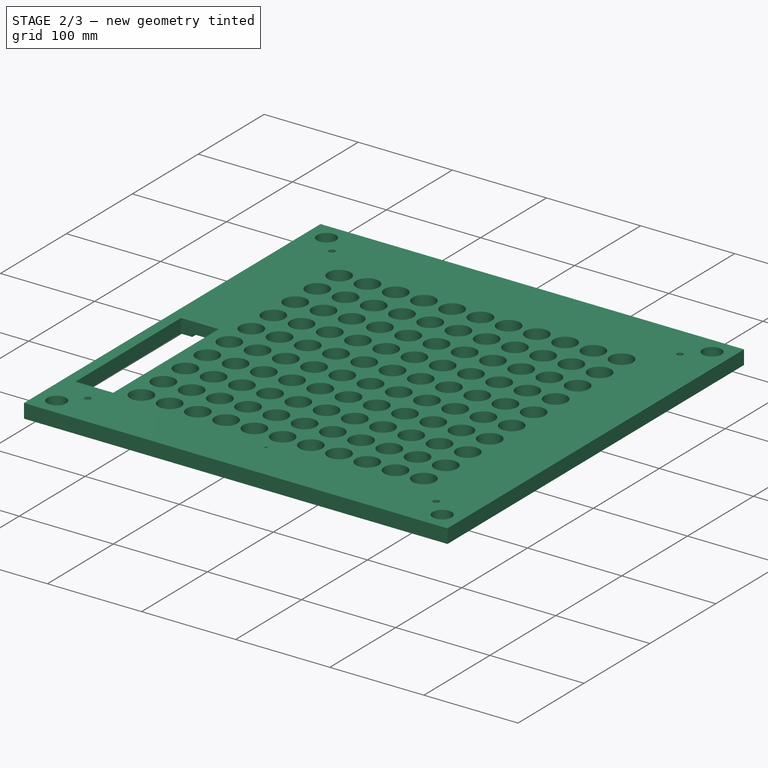
[diagram: stage 2 of 3 — iso view after this stage's code; geometry added in this stage tinted green]
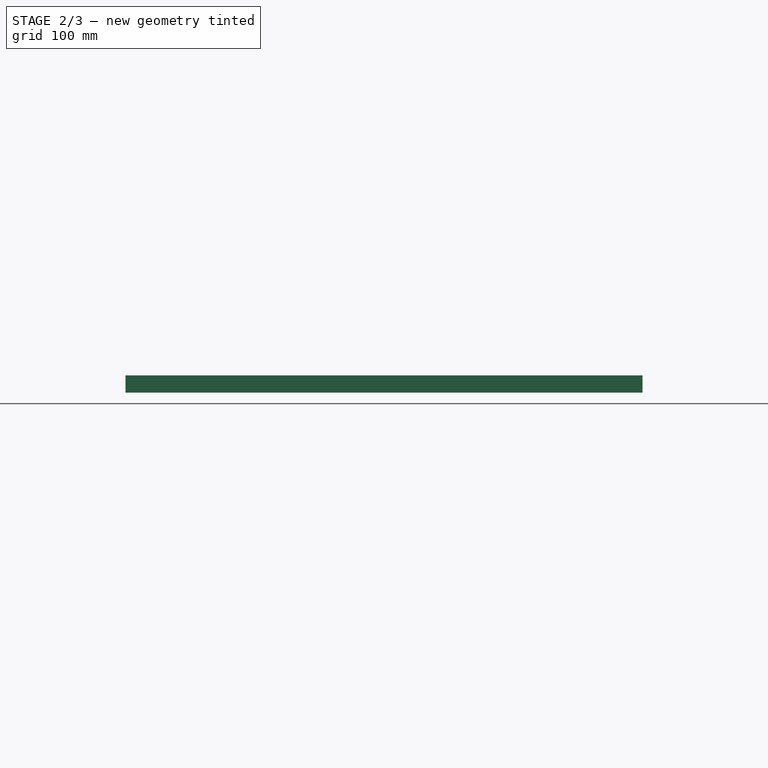
[diagram: stage 2 of 3 — front view after this stage's code; geometry added in this stage tinted green]
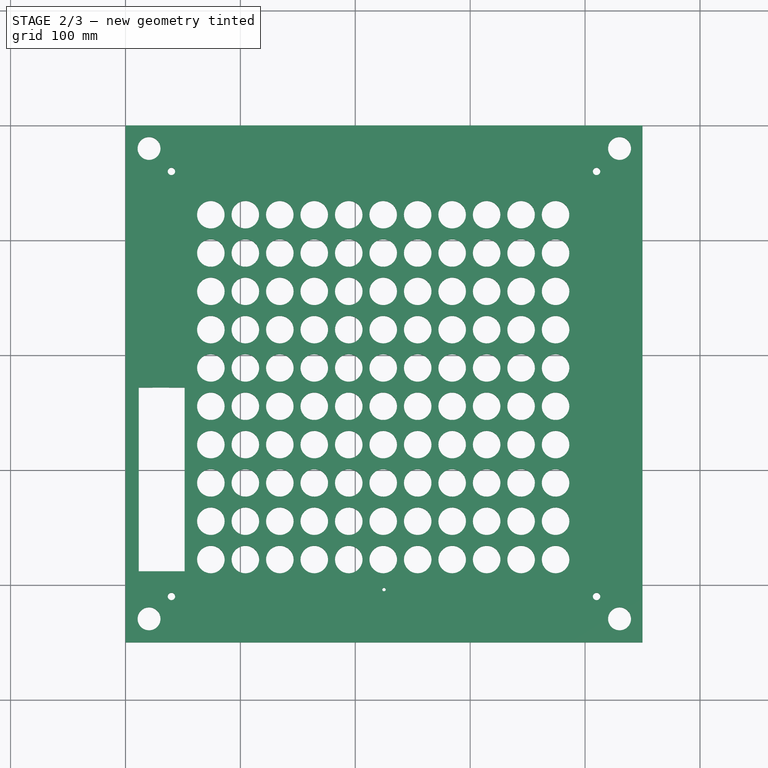
[diagram: stage 2 of 3 — top view after this stage's code; geometry added in this stage tinted green]
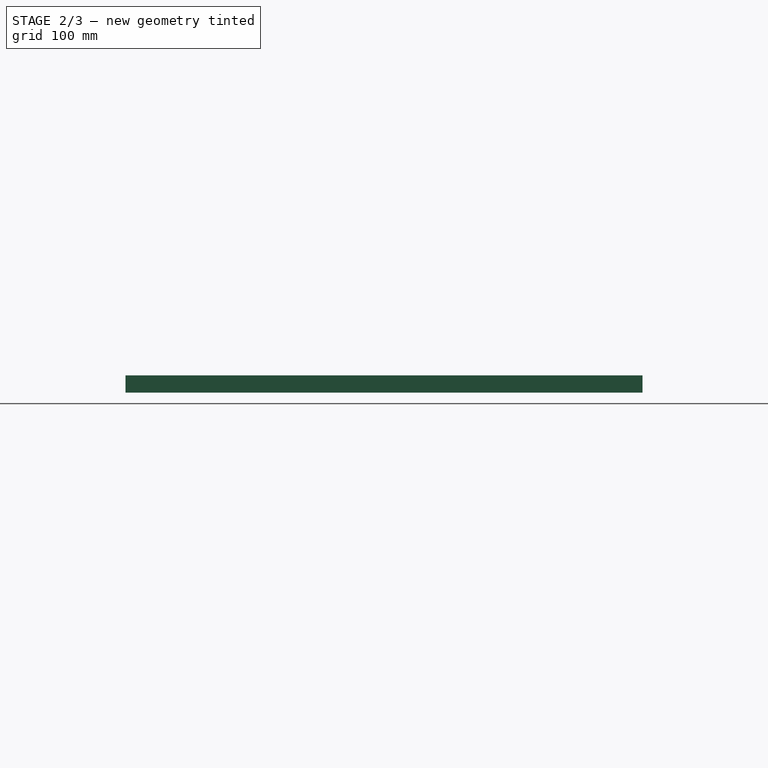
[diagram: stage 2 of 3 — right view after this stage's code; geometry added in this stage tinted green]
FEATURE [PartDesign::Body] Body  label="Body-led"
  Group = -> [Sketch124,Pad001]
  Origin = -> Origin
  Tip = -> Pad001
FEATURE [Part::Cut] Cut
  Base = -> Extrude001
  Tool = -> Body
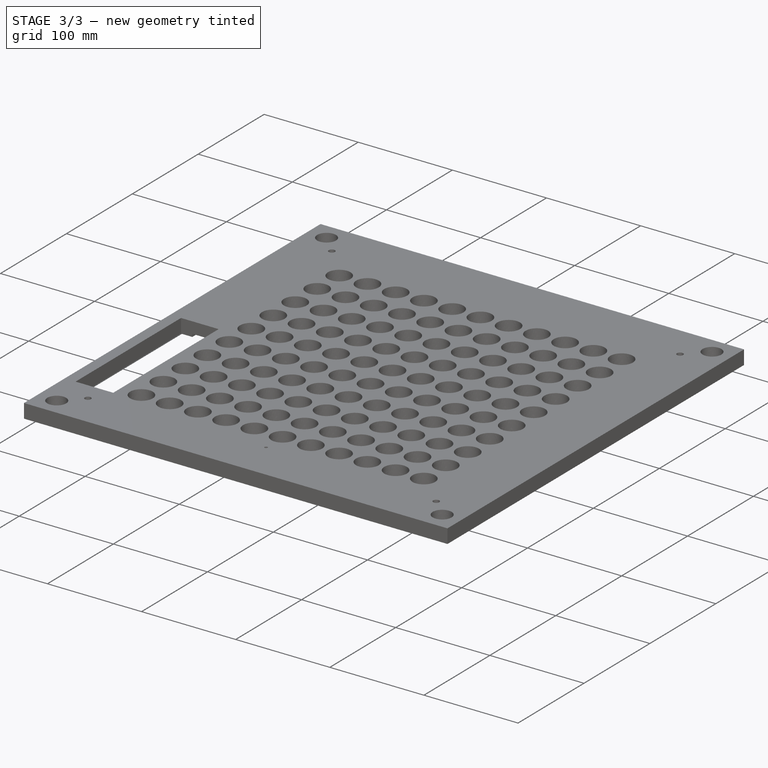
[diagram: stage 3 of 3 — iso view after this stage's code; geometry added in this stage tinted green]
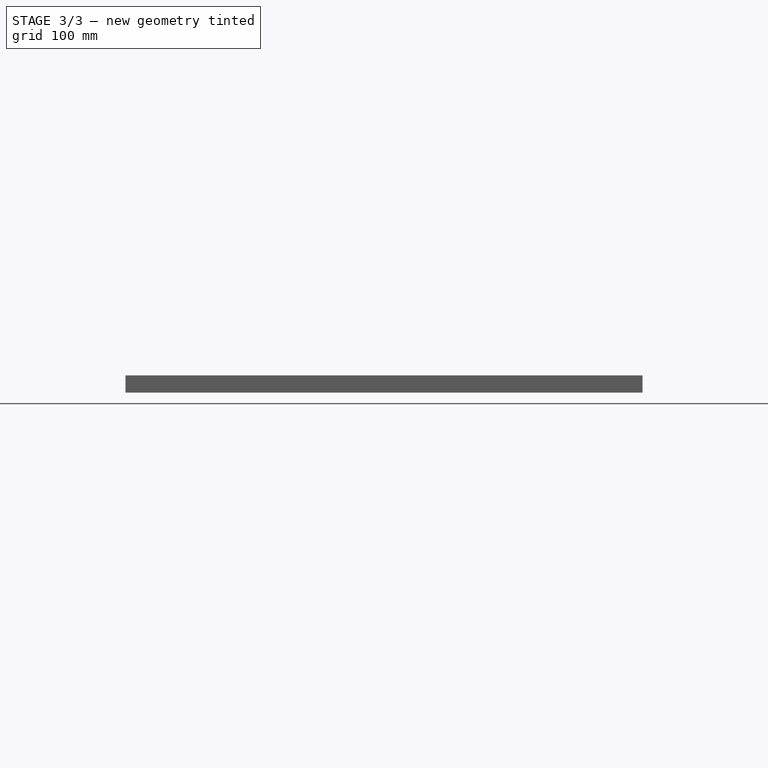
[diagram: stage 3 of 3 — front view after this stage's code; geometry added in this stage tinted green]
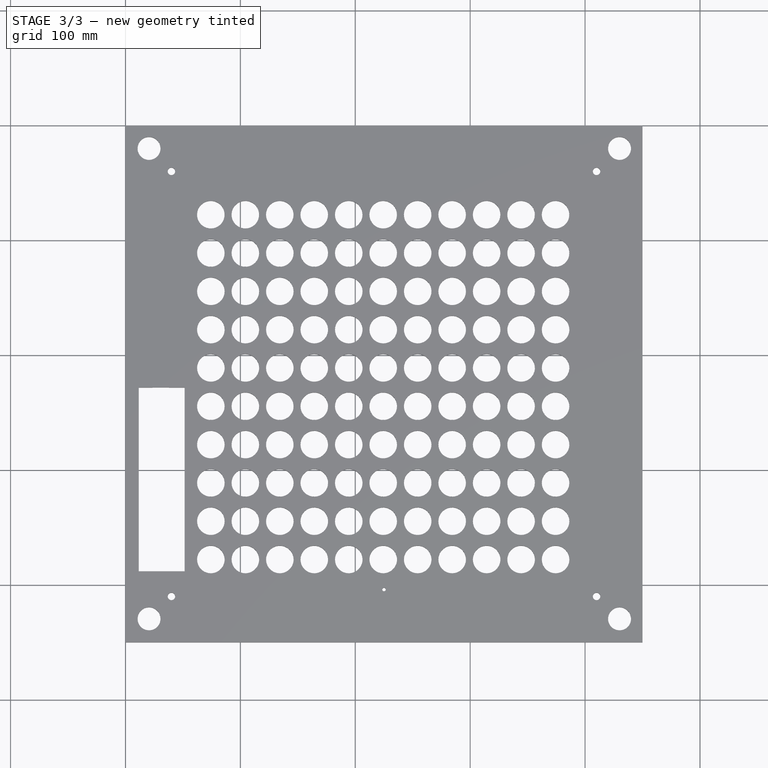
[diagram: stage 3 of 3 — top view after this stage's code; geometry added in this stage tinted green]
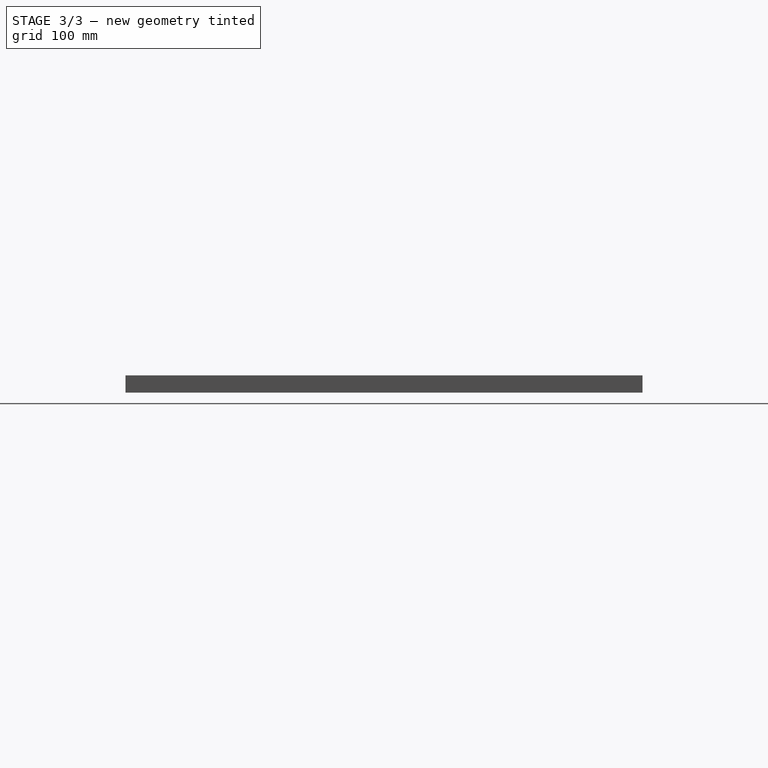
[diagram: stage 3 of 3 — right view after this stage's code; geometry added in this stage tinted green]
FEATURE [Sketcher::SketchObject] Sketch123  label="wires001"
  sketch-geometry (36):
    g0: LineSegment StartX=42.5205 StartY=-147.039 StartZ=0 EndX=22.5205 EndY=-147.039 EndZ=0
    g1: LineSegment StartX=22.5205 StartY=-147.039 StartZ=0 EndX=22.5205 EndY=-107.039 EndZ=0
    g2: LineSegment StartX=22.5205 StartY=-107.039 StartZ=0 EndX=42.5205 EndY=-107.039 EndZ=0
    g3: LineSegment StartX=42.5205 StartY=-107.039 StartZ=0 EndX=42.5205 EndY=-147.039 EndZ=0
    g4: LineSegment StartX=23.7036 StartY=-174.007 StartZ=0 EndX=43.7036 EndY=-174.007 EndZ=0
    g5: LineSegment StartX=43.7036 StartY=-174.007 StartZ=0 EndX=43.7036 EndY=-214.007 EndZ=0
    g6: LineSegment StartX=43.7036 StartY=-214.007 StartZ=0 EndX=23.7036 EndY=-214.007 EndZ=0
    g7: LineSegment StartX=23.7036 StartY=-214.007 StartZ=0 EndX=23.7036 EndY=-174.007 EndZ=0
    g8: LineSegment StartX=402.584 StartY=-73.4929 StartZ=0 EndX=422.584 EndY=-73.4929 EndZ=0
    g9: LineSegment StartX=422.584 StartY=-73.4929 StartZ=0 EndX=422.584 EndY=-113.493 EndZ=0
    g10: LineSegment StartX=422.584 StartY=-113.493 StartZ=0 EndX=402.584 EndY=-113.493 EndZ=0
    g11: LineSegment StartX=402.584 StartY=-113.493 StartZ=0 EndX=402.584 EndY=-73.4929 EndZ=0
    g12: LineSegment StartX=402.395 StartY=-140.08 StartZ=0 EndX=422.395 EndY=-140.08 EndZ=0
    g13: LineSegment StartX=422.395 StartY=-140.08 StartZ=0 EndX=422.395 EndY=-180.08 EndZ=0
    g14: LineSegment StartX=422.395 StartY=-180.08 StartZ=0 EndX=402.395 EndY=-180.08 EndZ=0
    g15: LineSegment StartX=402.395 StartY=-180.08 StartZ=0 EndX=402.395 EndY=-140.08 EndZ=0
    g16: LineSegment StartX=402.416 StartY=-207.33 StartZ=0 EndX=422.416 EndY=-207.33 EndZ=0
    g17: LineSegment StartX=422.416 StartY=-207.33 StartZ=0 EndX=422.416 EndY=-247.33 EndZ=0
    g18: LineSegment StartX=422.416 StartY=-247.33 StartZ=0 EndX=402.416 EndY=-247.33 EndZ=0
    g19: LineSegment StartX=402.416 StartY=-247.33 StartZ=0 EndX=402.416 EndY=-207.33 EndZ=0
    g20: LineSegment StartX=402.531 StartY=-273.805 StartZ=0 EndX=422.531 EndY=-273.805 EndZ=0
    g21: LineSegment StartX=422.531 StartY=-273.805 StartZ=0 EndX=422.531 EndY=-313.805 EndZ=0
    g22: LineSegment StartX=422.531 StartY=-313.805 StartZ=0 EndX=402.531 EndY=-313.805 EndZ=0
    g23: LineSegment StartX=402.531 StartY=-313.805 StartZ=0 EndX=402.531 EndY=-273.805 EndZ=0
    g24: LineSegment StartX=402.62 StartY=-340.786 StartZ=0 EndX=422.62 EndY=-340.786 EndZ=0
    g25: LineSegment StartX=422.62 StartY=-340.786 StartZ=0 EndX=422.62 EndY=-380.786 EndZ=0
    g26: LineSegment StartX=422.62 StartY=-380.786 StartZ=0 EndX=402.62 EndY=-380.786 EndZ=0
    g27: LineSegment StartX=402.62 StartY=-380.786 StartZ=0 EndX=402.62 EndY=-340.786 EndZ=0
    g28: LineSegment StartX=22.9681 StartY=-240.055 StartZ=0 EndX=42.9681 EndY=-240.055 EndZ=0
    g29: LineSegment StartX=42.9681 StartY=-240.055 StartZ=0 EndX=42.9681 EndY=-280.055 EndZ=0
    g30: LineSegment StartX=42.9681 StartY=-280.055 StartZ=0 EndX=22.9681 EndY=-280.055 EndZ=0
    g31: LineSegment StartX=22.9681 StartY=-280.055 StartZ=0 EndX=22.9681 EndY=-240.055 EndZ=0
    g32: LineSegment StartX=23.024 StartY=-307.792 StartZ=0 EndX=43.024 EndY=-307.792 EndZ=0
    g33: LineSegment StartX=43.024 StartY=-307.792 StartZ=0 EndX=43.024 EndY=-347.792 EndZ=0
    g34: LineSegment StartX=43.024 StartY=-347.792 StartZ=0 EndX=23.024 EndY=-347.792 EndZ=0
    g35: LineSegment StartX=23.024 StartY=-347.792 StartZ=0 EndX=23.024 EndY=-307.792 EndZ=0
  constraints (90):
    c: Coincident(g0,g1)
    c: Coincident(g1,g2)
    c: Coincident(g2,g3)
    c: Coincident(g3,g0)
    c: Horizontal(g0)
    c: Horizontal(g2)
    c: Vertical(g1)
    c: Vertical(g3)
    c: Coincident(g4,g5)
    c: Coincident(g5,g6)
    c: Coincident(g6,g7)
    c: Coincident(g7,g4)
    c: Horizontal(g4)
    c: Horizontal(g6)
    c: Vertical(g5)
    c: Vertical(g7)
    c: Coincident(g8,g9)
    c: Coincident(g9,g10)
    c: Coincident(g10,g11)
    c: Coincident(g11,g8)
    c: Horizontal(g8)
    c: Horizontal(g10)
    c: Vertical(g9)
    c: Vertical(g11)
    c: Coincident(g12,g13)
    c: Coincident(g13,g14)
    c: Coincident(g14,g15)
    c: Coincident(g15,g12)
    c: Horizontal(g12)
    c: Horizontal(g14)
    c: Vertical(g13)
    c: Vertical(g15)
    c: Coincident(g16,g17)
    c: Coincident(g17,g18)
    c: Coincident(g18,g19)
    c: Coincident(g19,g16)
    c: Horizontal(g16)
    c: Horizontal(g18)
    c: Vertical(g17)
    c: Vertical(g19)
    c: Coincident(g20,g21)
    c: Coincident(g21,g22)
    c: Coincident(g22,g23)
    c: Coincident(g23,g20)
    c: Horizontal(g20)
    c: Horizontal(g22)
    c: Vertical(g21)
    c: Vertical(g23)
    c: Coincident(g24,g25)
    c: Coincident(g25,g26)
    c: Coincident(g26,g27)
    c: Coincident(g27,g24)
    c: Horizontal(g24)
    c: Horizontal(g26)
    c: Vertical(g25)
    c: Vertical(g27)
    c: Coincident(g28,g29)
    c: Coincident(g29,g30)
    c: Coincident(g30,g31)
    c: Coincident(g31,g28)
    c: Horizontal(g28)
    c: Horizontal(g30)
    c: Vertical(g29)
    c: Vertical(g31)
    c: Coincident(g32,g33)
    c: Coincident(g33,g34)
    c: Coincident(g34,g35)
    c: Coincident(g35,g32)
    c: Horizontal(g32)
    c: Horizontal(g34)
    c: Vertical(g33)
    c: Vertical(g35)
    c: DistanceX(g2,g2) = 20
    c: DistanceY(g3,g3) = 40
    c: DistanceX(g4,g4) = 20
    c: DistanceY(g5,g5) = 40
    c: DistanceX(g8,g8) = 20
    c: DistanceY(g11,g11) = 40
    c: DistanceX(g12,g12) = 20
    c: DistanceY(g15,g15) = 40
    c: DistanceX(g16,g16) = 20
    c: DistanceY(g19,g19) = 40
    c: DistanceX(g20,g20) = 20
    c: DistanceY(g23,g23) = 40
    c: DistanceX(g24,g24) = 20
    c: DistanceY(g27,g27) = 40
    c: DistanceX(g28,g28) = 20
    c: DistanceX(g32,g32) = 20
    c: DistanceY(g35,g35) = 40
    c: DistanceY(g31,g31) = 40
FEATURE [Part::Extrusion] Extrude
  Base = -> Sketch123
  Dir = (0,0,1)
  DirMode = 2
  FaceMakerClass = Part::FaceMakerBullseye
  LengthFwd = 6
  LengthRev = 0
  Solid = true
  Symmetric = false
FEATURE [Part::Cut] Cut001
  Base = -> Cut
  Tool = -> Extrude
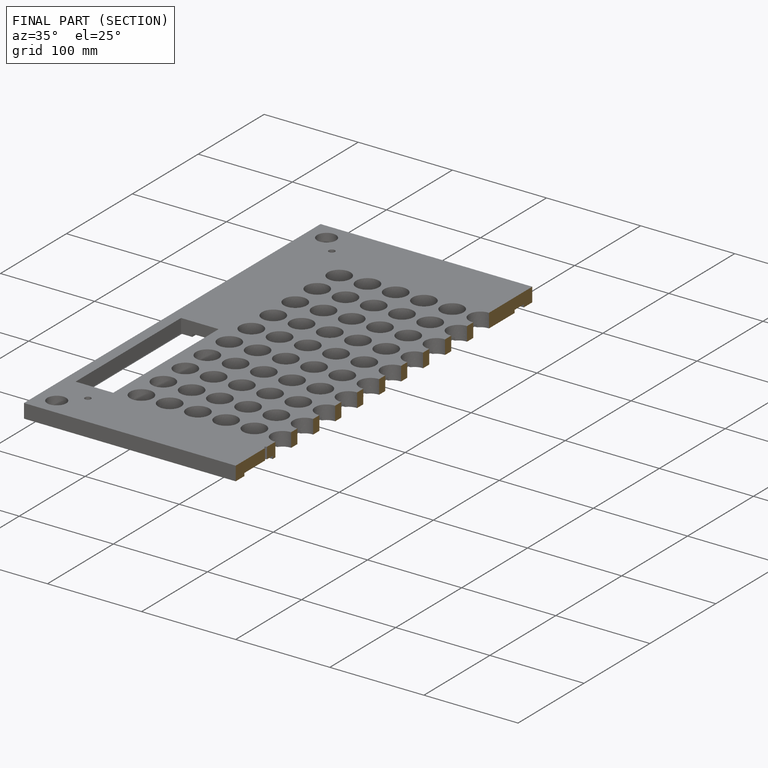
[diagram: finished part — half-section view (interior)]
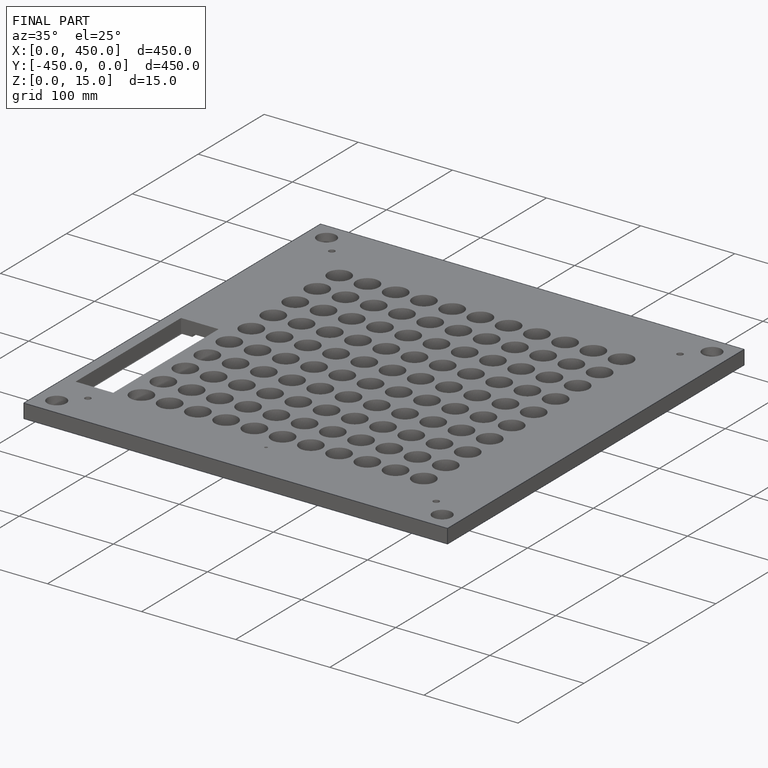
[diagram: finished part — iso view with bounding-box wireframe]
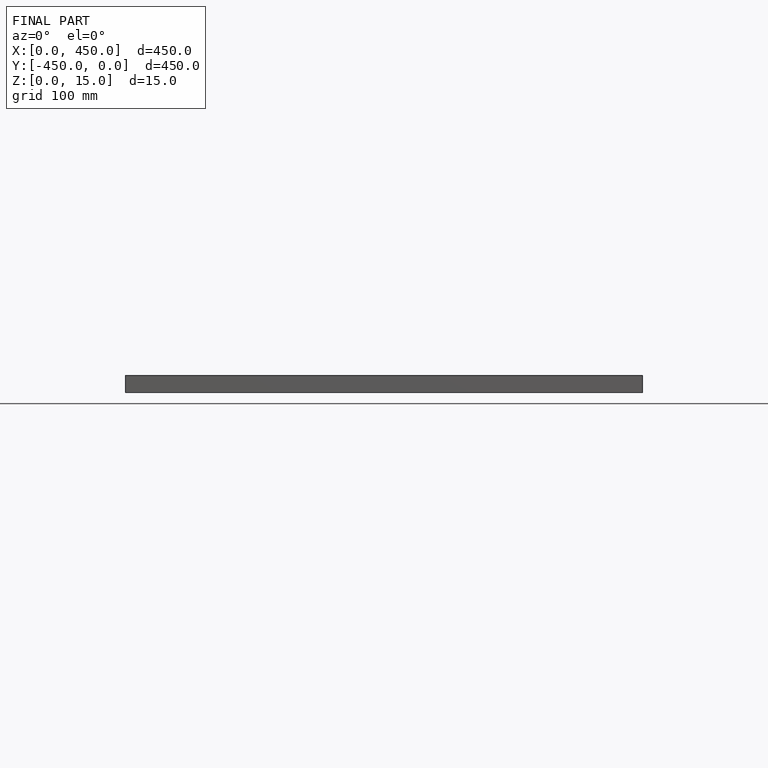
[diagram: finished part — front view with bounding-box wireframe]
